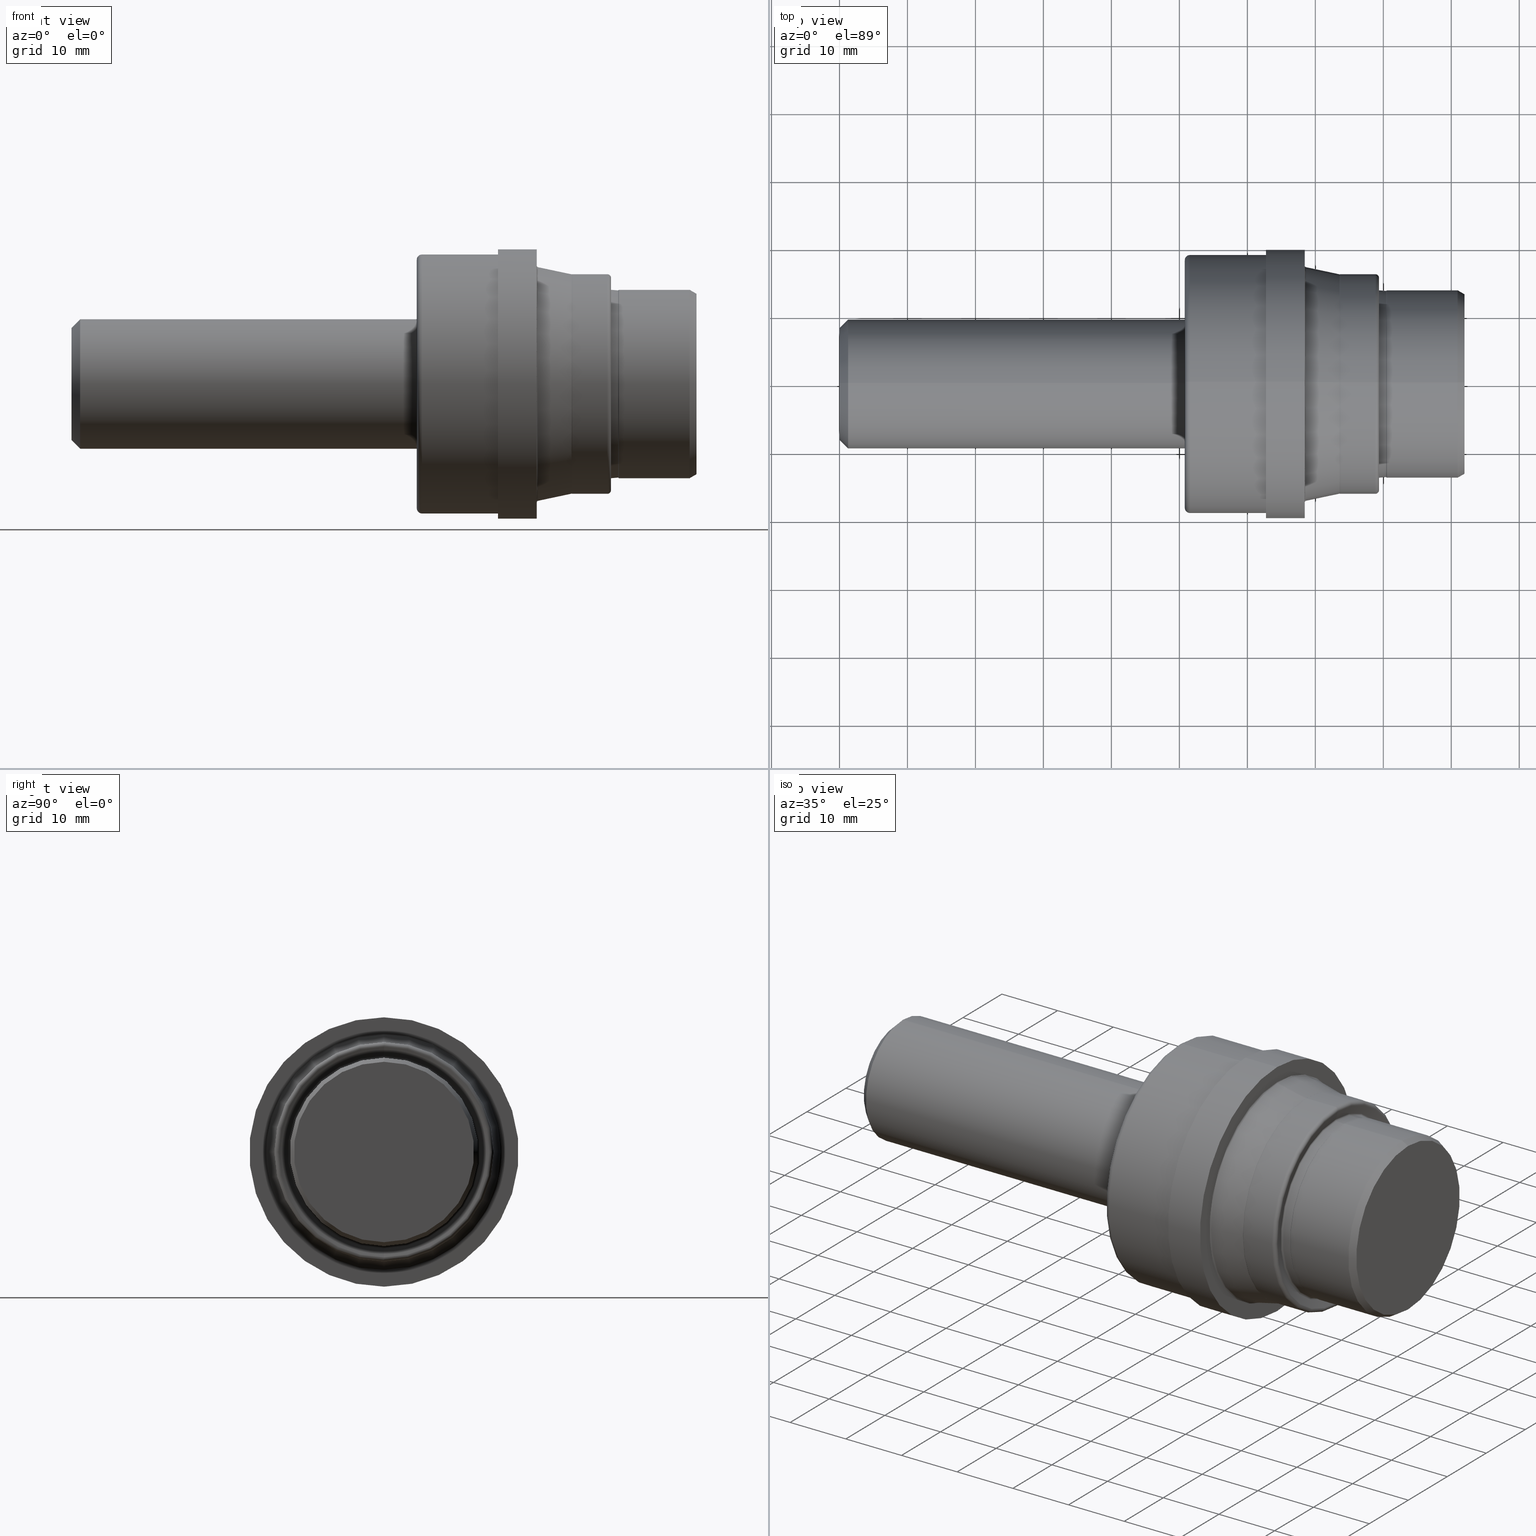
[diagram: canonical four-view strip — front | top / right | iso, engineering-drawing reading convention]
A machine part, canonical four-view strip (front | top / right | iso — engineering-drawing reading convention). The complete STEP part file that produces these views, byte-faithful:
ISO-10303-21;
HEADER;
FILE_DESCRIPTION (( 'STEP AP214' ),
    '1' );
FILE_NAME ('MS33514-20.STEP',
    '2019-03-07T21:07:23',
    ( '' ),
    ( '' ),
    'SwSTEP 2.0',
    'SolidWorks 2018',
    '' );
FILE_SCHEMA (( 'AUTOMOTIVE_DESIGN' ));
ENDSEC;

DATA;
#1 = DIRECTION ( 'NONE',  ( -0.0000000000000000000, -1.000000000000000000, -0.0000000000000000000 ) ) ;
#2 = LENGTH_MEASURE_WITH_UNIT ( LENGTH_MEASURE( 0.02539999999999999897 ), #1012 );
#3 = ORIENTED_EDGE ( 'NONE', *, *, #726, .T. ) ;
#4 = CARTESIAN_POINT ( 'NONE',  ( 2.000000000000000444, 0.0000000000000000000, 0.0000000000000000000 ) ) ;
#5 = VECTOR ( 'NONE', #1031, 39.37007874015748854 ) ;
#6 = FACE_OUTER_BOUND ( 'NONE', #546, .T. ) ;
#7 = EDGE_CURVE ( 'NONE', #959, #431, #322, .T. ) ;
#8 = ORIENTED_EDGE ( 'NONE', *, *, #569, .T. ) ;
#9 = CLOSED_SHELL ( 'NONE', ( #517, #881, #846, #761, #227, #50, #536, #618, #929, #147, #519, #802, #207, #453, #297, #358, #931, #122, #705, #1018, #387, #1038, #287, #844, #950, #78, #375, #685, #469, #66, #437, #593, #604, #433, #866, #212, #164, #779, #124 ) ) ;
#10 = DIRECTION ( 'NONE',  ( 0.0000000000000000000, 0.0000000000000000000, 1.000000000000000000 ) ) ;
#11 = CARTESIAN_POINT ( 'NONE',  ( 3.170340741737109003, 0.0000000000000000000, -0.5454999999999999849 ) ) ;
#12 = EDGE_CURVE ( 'NONE', #695, #43, #602, .T. ) ;
#13 = DIRECTION ( 'NONE',  ( 1.000000000000000000, -0.0000000000000000000, -0.0000000000000000000 ) ) ;
#14 = AXIS2_PLACEMENT_3D ( 'NONE', #566, #325, #172 ) ;
#15 = TOROIDAL_SURFACE ( 'NONE', #215, 0.6411813768762686383, 0.005999999999997721566 ) ;
#16 = ORIENTED_EDGE ( 'NONE', *, *, #673, .T. ) ;
#17 = EDGE_LOOP ( 'NONE', ( #710, #175 ) ) ;
#18 = DIRECTION ( 'NONE',  ( 1.000000000000000000, -0.0000000000000000000, -0.0000000000000000000 ) ) ;
#19 =( GEOMETRIC_REPRESENTATION_CONTEXT ( 3 ) GLOBAL_UNCERTAINTY_ASSIGNED_CONTEXT ( ( #102 ) ) GLOBAL_UNIT_ASSIGNED_CONTEXT ( ( #295, #945, #714 ) ) REPRESENTATION_CONTEXT ( 'NONE', 'WORKASPACE' ) );
#20 = TOROIDAL_SURFACE ( 'NONE', #848, 0.6148500000000004517, 0.02100000000000000477 ) ;
#21 = CARTESIAN_POINT ( 'NONE',  ( 0.0000000000000000000, 0.0000000000000000000, 0.0000000000000000000 ) ) ;
#22 = EDGE_CURVE ( 'NONE', #655, #174, #833, .T. ) ;
#23 = CARTESIAN_POINT ( 'NONE',  ( 2.695000000000000284, 0.0000000000000000000, 0.0000000000000000000 ) ) ;
#24 = AXIS2_PLACEMENT_3D ( 'NONE', #466, #962, #381 ) ;
#25 = ORIENTED_EDGE ( 'NONE', *, *, #511, .T. ) ;
#26 = CIRCLE ( 'NONE', #1040, 0.02999999999999995379 ) ;
#27 = CONICAL_SURFACE ( 'NONE', #343, 0.5454999999999999849, 0.7853981633974578269 ) ;
#28 = AXIS2_PLACEMENT_3D ( 'NONE', #681, #752, #276 ) ;
#29 = EDGE_CURVE ( 'NONE', #385, #858, #823, .T. ) ;
#30 = ORIENTED_EDGE ( 'NONE', *, *, #664, .T. ) ;
#31 = CARTESIAN_POINT ( 'NONE',  ( 2.895828938860935953, 7.780334088944212976E-17, -0.6353124912718658424 ) ) ;
#32 = DIRECTION ( 'NONE',  ( 1.000000000000000000, -0.0000000000000000000, -0.0000000000000000000 ) ) ;
#33 = AXIS2_PLACEMENT_3D ( 'NONE', #272, #748, #198 ) ;
#34 = DIRECTION ( 'NONE',  ( 0.7071067811865459074, 8.659560562354952580E-17, 0.7071067811865491270 ) ) ;
#35 = EDGE_CURVE ( 'NONE', #1005, #431, #216, .T. ) ;
#36 = CARTESIAN_POINT ( 'NONE',  ( 3.620000000000000107, 0.0000000000000000000, 0.5224059892324148802 ) ) ;
#37 = AXIS2_PLACEMENT_3D ( 'NONE', #67, #861, #626 ) ;
#38 = CIRCLE ( 'NONE', #756, 0.3748500000000000165 ) ;
#39 = CARTESIAN_POINT ( 'NONE',  ( 0.0000000000000000000, 0.0000000000000000000, 0.0000000000000000000 ) ) ;
#40 = ORIENTED_EDGE ( 'NONE', *, *, #152, .T. ) ;
#41 = ORIENTED_EDGE ( 'NONE', *, *, #400, .F. ) ;
#42 = UNCERTAINTY_MEASURE_WITH_UNIT (LENGTH_MEASURE( 1.000000000000000082E-05 ), #282, 'distance_accuracy_value', 'NONE');
#43 = VERTEX_POINT ( 'NONE', #938 ) ;
#44 = ORIENTED_EDGE ( 'NONE', *, *, #339, .T. ) ;
#45 = PRODUCT_DEFINITION_SHAPE ( 'NONE', 'NONE',  #240 ) ;
#46 = DIRECTION ( 'NONE',  ( 0.0000000000000000000, 0.0000000000000000000, -1.000000000000000000 ) ) ;
#47 = DIRECTION ( 'NONE',  ( 0.0000000000000000000, 0.0000000000000000000, -1.000000000000000000 ) ) ;
#48 = AXIS2_PLACEMENT_3D ( 'NONE', #226, #699, #142 ) ;
#49 = DIRECTION ( 'NONE',  ( 0.0000000000000000000, 0.0000000000000000000, -1.000000000000000000 ) ) ;
#50 = ADVANCED_FACE ( 'NONE', ( #976 ), #787, .T. ) ;
#51 = CARTESIAN_POINT ( 'NONE',  ( 3.170340741737109003, 0.0000000000000000000, 0.0000000000000000000 ) ) ;
#52 = ORIENTED_EDGE ( 'NONE', *, *, #426, .T. ) ;
#53 = CONICAL_SURFACE ( 'NONE', #975, 0.3748500000000000165, 0.7853981633974506105 ) ;
#54 = SURFACE_SIDE_STYLE ('',( #999 ) ) ;
#55 = CIRCLE ( 'NONE', #402, 0.5224059892324148802 ) ;
#56 = DIRECTION ( 'NONE',  ( 1.000000000000000000, -0.0000000000000000000, -0.0000000000000000000 ) ) ;
#57 = ORIENTED_EDGE ( 'NONE', *, *, #668, .T. ) ;
#58 = ORIENTED_EDGE ( 'NONE', *, *, #403, .F. ) ;
#59 = LINE ( 'NONE', #545, #321 ) ;
#60 = DIRECTION ( 'NONE',  ( 1.000000000000000000, -0.0000000000000000000, -0.0000000000000000000 ) ) ;
#61 = EDGE_CURVE ( 'NONE', #43, #307, #105, .T. ) ;
#62 = DIRECTION ( 'NONE',  ( 0.0000000000000000000, 0.0000000000000000000, -1.000000000000000000 ) ) ;
#63 = CARTESIAN_POINT ( 'NONE',  ( 0.0000000000000000000, 0.0000000000000000000, 0.0000000000000000000 ) ) ;
#64 = DIRECTION ( 'NONE',  ( 1.000000000000000000, -0.0000000000000000000, -0.0000000000000000000 ) ) ;
#65 = DIRECTION ( 'NONE',  ( 0.0000000000000000000, 0.0000000000000000000, -1.000000000000000000 ) ) ;
#66 = ADVANCED_FACE ( 'NONE', ( #638 ), #847, .F. ) ;
#67 = CARTESIAN_POINT ( 'NONE',  ( 2.897076409005843178, 7.852207208644152033E-17, 0.6411813768762686383 ) ) ;
#68 = EDGE_CURVE ( 'NONE', #911, #337, #766, .T. ) ;
#69 = DIRECTION ( 'NONE',  ( 1.000000000000000000, -0.0000000000000000000, -0.0000000000000000000 ) ) ;
#70 = CARTESIAN_POINT ( 'NONE',  ( 2.695000000000000284, 0.0000000000000000000, 0.0000000000000000000 ) ) ;
#71 = FACE_OUTER_BOUND ( 'NONE', #641, .T. ) ;
#72 = ORIENTED_EDGE ( 'NONE', *, *, #825, .T. ) ;
#73 = AXIS2_PLACEMENT_3D ( 'NONE', #648, #481, #10 ) ;
#74 = CARTESIAN_POINT ( 'NONE',  ( 0.04999999999999998890, 0.0000000000000000000, -0.3748500000000000165 ) ) ;
#75 = ORIENTED_EDGE ( 'NONE', *, *, #138, .T. ) ;
#76 = ORIENTED_EDGE ( 'NONE', *, *, #451, .F. ) ;
#77 = DIRECTION ( 'NONE',  ( 0.0000000000000000000, 1.224646799147349756E-16, 1.000000000000000000 ) ) ;
#78 = ADVANCED_FACE ( 'NONE', ( #239 ), #20, .T. ) ;
#79 = EDGE_CURVE ( 'NONE', #898, #432, #619, .T. ) ;
#80 = ORIENTED_EDGE ( 'NONE', *, *, #664, .F. ) ;
#81 = TOROIDAL_SURFACE ( 'NONE', #870, 0.7199999999999999734, 0.02999999999999988440 ) ;
#82 = CIRCLE ( 'NONE', #454, 0.3748500000000000165 ) ;
#83 = AXIS2_PLACEMENT_3D ( 'NONE', #914, #354, #691 ) ;
#84 = EDGE_CURVE ( 'NONE', #926, #301, #59, .T. ) ;
#85 = AXIS2_PLACEMENT_3D ( 'NONE', #666, #107, #274 ) ;
#86 = EDGE_LOOP ( 'NONE', ( #188, #542, #3, #728 ) ) ;
#87 = EDGE_CURVE ( 'NONE', #995, #288, #131, .T. ) ;
#88 = CIRCLE ( 'NONE', #332, 0.5586501374319425839 ) ;
#89 = ORIENTED_EDGE ( 'NONE', *, *, #330, .F. ) ;
#90 = EDGE_LOOP ( 'NONE', ( #91, #742, #652, #689 ) ) ;
#91 = ORIENTED_EDGE ( 'NONE', *, *, #178, .F. ) ;
#92 = DIRECTION ( 'NONE',  ( 1.000000000000000000, -0.0000000000000000000, -0.0000000000000000000 ) ) ;
#93 = AXIS2_PLACEMENT_3D ( 'NONE', #707, #612, #137 ) ;
#94 = VERTEX_POINT ( 'NONE', #345 ) ;
#95 = DIRECTION ( 'NONE',  ( 0.0000000000000000000, 0.0000000000000000000, -1.000000000000000000 ) ) ;
#96 = DIRECTION ( 'NONE',  ( 0.0000000000000000000, 0.0000000000000000000, -1.000000000000000000 ) ) ;
#97 = AXIS2_PLACEMENT_3D ( 'NONE', #513, #286, #516 ) ;
#98 = FACE_OUTER_BOUND ( 'NONE', #415, .T. ) ;
#99 = EDGE_CURVE ( 'NONE', #431, #1005, #891, .T. ) ;
#100 = DIRECTION ( 'NONE',  ( 0.0000000000000000000, 0.0000000000000000000, -1.000000000000000000 ) ) ;
#101 = VECTOR ( 'NONE', #338, 39.37007874015748143 ) ;
#102 = UNCERTAINTY_MEASURE_WITH_UNIT (LENGTH_MEASURE( 1.000000000000000082E-05 ), #295, 'distance_accuracy_value', 'NONE');
#103 = CARTESIAN_POINT ( 'NONE',  ( 2.701336706473457472, 8.286610425892697177E-17, -0.6766530914596893265 ) ) ;
#104 = CARTESIAN_POINT ( 'NONE',  ( 3.120000000000000107, 6.809794834978257396E-17, 0.5560619469809173765 ) ) ;
#105 = CIRCLE ( 'NONE', #1019, 0.7500000000000001110 ) ;
#106 = ORIENTED_EDGE ( 'NONE', *, *, #330, .T. ) ;
#107 = DIRECTION ( 'NONE',  ( -1.000000000000000000, 0.0000000000000000000, 0.0000000000000000000 ) ) ;
#108 = DIRECTION ( 'NONE',  ( 0.0000000000000000000, 0.0000000000000000000, 1.000000000000000000 ) ) ;
#109 = FACE_OUTER_BOUND ( 'NONE', #558, .T. ) ;
#110 = EDGE_LOOP ( 'NONE', ( #859, #40, #853, #563 ) ) ;
#111 = DIRECTION ( 'NONE',  ( 0.0000000000000000000, 0.0000000000000000000, -1.000000000000000000 ) ) ;
#112 = ORIENTED_EDGE ( 'NONE', *, *, #68, .F. ) ;
#113 = DIRECTION ( 'NONE',  ( 1.000000000000000000, -0.0000000000000000000, -0.0000000000000000000 ) ) ;
#114 = EDGE_CURVE ( 'NONE', #911, #432, #974, .T. ) ;
#115 = ORIENTED_EDGE ( 'NONE', *, *, #621, .F. ) ;
#116 = ORIENTED_EDGE ( 'NONE', *, *, #780, .F. ) ;
#117 = ORIENTED_EDGE ( 'NONE', *, *, #548, .T. ) ;
#118 = DIRECTION ( 'NONE',  ( 0.0000000000000000000, 0.0000000000000000000, -1.000000000000000000 ) ) ;
#119 = AXIS2_PLACEMENT_3D ( 'NONE', #4, #479, #977 ) ;
#120 = DIRECTION ( 'NONE',  ( 1.000000000000000000, -0.0000000000000000000, -0.0000000000000000000 ) ) ;
#121 = CARTESIAN_POINT ( 'NONE',  ( 3.103658649738347819, 0.0000000000000000000, 0.0000000000000000000 ) ) ;
#122 = ADVANCED_FACE ( 'NONE', ( #832 ), #989, .T. ) ;
#123 = FILL_AREA_STYLE_COLOUR ( '', #340 ) ;
#124 = ADVANCED_FACE ( 'NONE', ( #803 ), #1034, .T. ) ;
#125 = CARTESIAN_POINT ( 'NONE',  ( 2.029999999999999805, 0.0000000000000000000, 0.0000000000000000000 ) ) ;
#126 = CONICAL_SURFACE ( 'NONE', #471, 0.3748500000000000165, 0.7853981633974506105 ) ;
#127 = FACE_OUTER_BOUND ( 'NONE', #556, .T. ) ;
#128 = VERTEX_POINT ( 'NONE', #951 ) ;
#129 = ORIENTED_EDGE ( 'NONE', *, *, #894, .T. ) ;
#130 = CARTESIAN_POINT ( 'NONE',  ( 2.895828938860935953, 0.0000000000000000000, 0.0000000000000000000 ) ) ;
#131 = LINE ( 'NONE', #140, #741 ) ;
#132 = DIRECTION ( 'NONE',  ( 0.0000000000000000000, 0.0000000000000000000, -1.000000000000000000 ) ) ;
#133 = ORIENTED_EDGE ( 'NONE', *, *, #194, .T. ) ;
#134 =( LENGTH_UNIT ( ) NAMED_UNIT ( * ) SI_UNIT ( $, .METRE. ) );
#135 = DIRECTION ( 'NONE',  ( 0.0000000000000000000, 0.0000000000000000000, -1.000000000000000000 ) ) ;
#136 = ORIENTED_EDGE ( 'NONE', *, *, #890, .T. ) ;
#137 = DIRECTION ( 'NONE',  ( 0.0000000000000000000, 0.0000000000000000000, 1.000000000000000000 ) ) ;
#138 = EDGE_CURVE ( 'NONE', #432, #898, #401, .T. ) ;
#139 = DIRECTION ( 'NONE',  ( 1.000000000000000000, -0.0000000000000000000, -0.0000000000000000000 ) ) ;
#140 = CARTESIAN_POINT ( 'NONE',  ( 3.110340741737108949, 0.0000000000000000000, -0.5586501374319425839 ) ) ;
#141 = ORIENTED_EDGE ( 'NONE', *, *, #726, .F. ) ;
#142 = DIRECTION ( 'NONE',  ( 0.0000000000000000000, 0.0000000000000000000, -1.000000000000000000 ) ) ;
#143 = CIRCLE ( 'NONE', #406, 0.6351813768762709644 ) ;
#144 = AXIS2_PLACEMENT_3D ( 'NONE', #1002, #744, #830 ) ;
#145 = CARTESIAN_POINT ( 'NONE',  ( 3.620000000000000107, 6.539038257518823720E-17, -0.5224059892324148802 ) ) ;
#146 = CIRCLE ( 'NONE', #281, 0.5454999999999999849 ) ;
#147 = ADVANCED_FACE ( 'NONE', ( #436 ), #706, .F. ) ;
#148 = DIRECTION ( 'NONE',  ( 0.0000000000000000000, 0.0000000000000000000, -1.000000000000000000 ) ) ;
#149 = VERTEX_POINT ( 'NONE', #205 ) ;
#150 = DIRECTION ( 'NONE',  ( 0.0000000000000000000, 0.0000000000000000000, -1.000000000000000000 ) ) ;
#151 = ORIENTED_EDGE ( 'NONE', *, *, #457, .T. ) ;
#152 = EDGE_CURVE ( 'NONE', #782, #985, #483, .T. ) ;
#153 = ORIENTED_EDGE ( 'NONE', *, *, #935, .T. ) ;
#154 = ORIENTED_EDGE ( 'NONE', *, *, #792, .F. ) ;
#155 = ORIENTED_EDGE ( 'NONE', *, *, #983, .F. ) ;
#156 = CARTESIAN_POINT ( 'NONE',  ( 3.166772432714541896, 6.658598698234532847E-17, 0.5419316909774325453 ) ) ;
#157 = DIRECTION ( 'NONE',  ( 1.000000000000000000, -0.0000000000000000000, -0.0000000000000000000 ) ) ;
#158 = DIRECTION ( 'NONE',  ( 1.000000000000000000, -0.0000000000000000000, -0.0000000000000000000 ) ) ;
#159 = AXIS2_PLACEMENT_3D ( 'NONE', #458, #1041, #547 ) ;
#160 = DIRECTION ( 'NONE',  ( 0.0000000000000000000, 0.0000000000000000000, -1.000000000000000000 ) ) ;
#161 = DIRECTION ( 'NONE',  ( 0.0000000000000000000, 0.0000000000000000000, -1.000000000000000000 ) ) ;
#162 = CYLINDRICAL_SURFACE ( 'NONE', #576, 0.3748500000000000165 ) ;
#163 = CONICAL_SURFACE ( 'NONE', #83, 0.5586501374319425839, 1.308996938995747872 ) ;
#164 = ADVANCED_FACE ( 'NONE', ( #310 ), #633, .T. ) ;
#165 = DIRECTION ( 'NONE',  ( 1.000000000000000000, -0.0000000000000000000, -0.0000000000000000000 ) ) ;
#166 = EDGE_CURVE ( 'NONE', #985, #816, #842, .T. ) ;
#167 = ORIENTED_EDGE ( 'NONE', *, *, #835, .F. ) ;
#168 = COLOUR_RGB ( '',0.7529411764705882248, 0.7529411764705882248, 0.7529411764705882248 ) ;
#169 = ORIENTED_EDGE ( 'NONE', *, *, #488, .T. ) ;
#170 = VECTOR ( 'NONE', #954, 39.37007874015748143 ) ;
#171 = CIRCLE ( 'NONE', #1010, 0.6094148000528477604 ) ;
#172 = DIRECTION ( 'NONE',  ( 0.0000000000000000000, 0.0000000000000000000, -1.000000000000000000 ) ) ;
#173 = ORIENTED_EDGE ( 'NONE', *, *, #264, .T. ) ;
#174 = VERTEX_POINT ( 'NONE', #934 ) ;
#175 = ORIENTED_EDGE ( 'NONE', *, *, #900, .F. ) ;
#176 = ORIENTED_EDGE ( 'NONE', *, *, #733, .T. ) ;
#177 = DIRECTION ( 'NONE',  ( -0.0000000000000000000, 0.0000000000000000000, -1.000000000000000000 ) ) ;
#178 = EDGE_CURVE ( 'NONE', #487, #655, #1044, .T. ) ;
#179 = DIRECTION ( 'NONE',  ( 0.0000000000000000000, 0.0000000000000000000, -1.000000000000000000 ) ) ;
#180 = AXIS2_PLACEMENT_3D ( 'NONE', #807, #245, #722 ) ;
#181 = EDGE_CURVE ( 'NONE', #659, #489, #208, .T. ) ;
#182 = CARTESIAN_POINT ( 'NONE',  ( 2.899828938860929739, 0.0000000000000000000, 0.0000000000000000000 ) ) ;
#183 = CIRCLE ( 'NONE', #359, 0.6766530914596893265 ) ;
#184 = FACE_OUTER_BOUND ( 'NONE', #635, .T. ) ;
#185 = CARTESIAN_POINT ( 'NONE',  ( 0.0000000000000000000, 0.0000000000000000000, 0.0000000000000000000 ) ) ;
#186 = VERTEX_POINT ( 'NONE', #422 ) ;
#187 = AXIS2_PLACEMENT_3D ( 'NONE', #243, #970, #720 ) ;
#188 = ORIENTED_EDGE ( 'NONE', *, *, #767, .F. ) ;
#189 = DIRECTION ( 'NONE',  ( 0.0000000000000000000, 0.0000000000000000000, -1.000000000000000000 ) ) ;
#190 = VERTEX_POINT ( 'NONE', #623 ) ;
#191 = VECTOR ( 'NONE', #446, 39.37007874015748143 ) ;
#192 = CARTESIAN_POINT ( 'NONE',  ( 2.470000000000000195, 0.0000000000000000000, -0.7500000000000001110 ) ) ;
#193 = CYLINDRICAL_SURFACE ( 'NONE', #896, 0.7499999999999998890 ) ;
#194 = EDGE_CURVE ( 'NONE', #888, #445, #384, .T. ) ;
#195 = EDGE_LOOP ( 'NONE', ( #731, #155 ) ) ;
#196 = EDGE_LOOP ( 'NONE', ( #529, #129, #610, #713 ) ) ;
#197 = ORIENTED_EDGE ( 'NONE', *, *, #347, .T. ) ;
#198 = DIRECTION ( 'NONE',  ( 0.0000000000000000000, 0.0000000000000000000, -1.000000000000000000 ) ) ;
#199 = AXIS2_PLACEMENT_3D ( 'NONE', #824, #270, #743 ) ;
#200 = DIRECTION ( 'NONE',  ( -1.000000000000000000, 0.0000000000000000000, 0.0000000000000000000 ) ) ;
#201 = CARTESIAN_POINT ( 'NONE',  ( 3.119128442572523419, 0.0000000000000000000, 0.0000000000000000000 ) ) ;
#202 = DIRECTION ( 'NONE',  ( 0.0000000000000000000, 0.0000000000000000000, -1.000000000000000000 ) ) ;
#203 = AXIS2_PLACEMENT_3D ( 'NONE', #535, #367, #700 ) ;
#204 = CARTESIAN_POINT ( 'NONE',  ( 2.695000000000000284, 9.552245033349354819E-17, 0.7800000000000000266 ) ) ;
#205 = CARTESIAN_POINT ( 'NONE',  ( 2.897076409005843178, 0.0000000000000000000, -0.6351813768762709644 ) ) ;
#206 = CIRCLE ( 'NONE', #97, 0.5460999999999996968 ) ;
#207 = ADVANCED_FACE ( 'NONE', ( #408 ), #163, .F. ) ;
#208 = CIRCLE ( 'NONE', #296, 0.7199999999999999734 ) ;
#209 = CARTESIAN_POINT ( 'NONE',  ( 2.029999999999999805, 0.0000000000000000000, 0.0000000000000000000 ) ) ;
#210 = ORIENTED_EDGE ( 'NONE', *, *, #723, .T. ) ;
#211 = ORIENTED_EDGE ( 'NONE', *, *, #956, .F. ) ;
#212 = ADVANCED_FACE ( 'NONE', ( #575, #184 ), #460, .T. ) ;
#213 = FILL_AREA_STYLE_COLOUR ( '', #168 ) ;
#214 = CARTESIAN_POINT ( 'NONE',  ( 2.897076409005843178, 0.0000000000000000000, -0.6411813768762686383 ) ) ;
#215 = AXIS2_PLACEMENT_3D ( 'NONE', #600, #64, #47 ) ;
#216 = CIRCLE ( 'NONE', #969, 0.5454999999999999849 ) ;
#217 =( NAMED_UNIT ( * ) PLANE_ANGLE_UNIT ( ) SI_UNIT ( $, .RADIAN. ) );
#218 = DIRECTION ( 'NONE',  ( 0.0000000000000000000, 0.0000000000000000000, -1.000000000000000000 ) ) ;
#219 = CARTESIAN_POINT ( 'NONE',  ( 2.470000000000000195, 0.0000000000000000000, 0.0000000000000000000 ) ) ;
#220 = CARTESIAN_POINT ( 'NONE',  ( 2.470000000000000195, 0.0000000000000000000, 0.0000000000000000000 ) ) ;
#221 = ORIENTED_EDGE ( 'NONE', *, *, #505, .T. ) ;
#222 = CIRCLE ( 'NONE', #312, 0.7800000000000000266 ) ;
#223 = CIRCLE ( 'NONE', #788, 0.6353124912718658424 ) ;
#224 = ORIENTED_EDGE ( 'NONE', *, *, #1036, .T. ) ;
#225 = DIRECTION ( 'NONE',  ( 1.000000000000000000, -0.0000000000000000000, -0.0000000000000000000 ) ) ;
#226 = CARTESIAN_POINT ( 'NONE',  ( 2.897076409005843178, 0.0000000000000000000, 0.0000000000000000000 ) ) ;
#227 = ADVANCED_FACE ( 'NONE', ( #798 ), #597, .T. ) ;
#228 = DIRECTION ( 'NONE',  ( 0.0000000000000000000, 0.0000000000000000000, -1.000000000000000000 ) ) ;
#229 = CARTESIAN_POINT ( 'NONE',  ( 2.899828938860929739, 0.0000000000000000000, -0.6358499999999984720 ) ) ;
#230 = DIRECTION ( 'NONE',  ( 1.000000000000000000, -0.0000000000000000000, -0.0000000000000000000 ) ) ;
#231 = EDGE_CURVE ( 'NONE', #985, #94, #355, .T. ) ;
#232 = DIRECTION ( 'NONE',  ( 1.000000000000000000, -0.0000000000000000000, -0.0000000000000000000 ) ) ;
#233 = AXIS2_PLACEMENT_3D ( 'NONE', #557, #1, #474 ) ;
#234 = PRODUCT_CONTEXT ( 'NONE', #1022, 'mechanical' ) ;
#235 = VECTOR ( 'NONE', #1027, 39.37007874015748143 ) ;
#236 = ORIENTED_EDGE ( 'NONE', *, *, #918, .F. ) ;
#237 = DIRECTION ( 'NONE',  ( 0.0000000000000000000, 0.0000000000000000000, -1.000000000000000000 ) ) ;
#238 = EDGE_LOOP ( 'NONE', ( #588, #224, #583, #899 ) ) ;
#239 = FACE_OUTER_BOUND ( 'NONE', #730, .T. ) ;
#240 = PRODUCT_DEFINITION ( 'UNKNOWN', '', #285, #492 ) ;
#241 = DIRECTION ( 'NONE',  ( 0.0000000000000000000, 0.0000000000000000000, -1.000000000000000000 ) ) ;
#242 = AXIS2_PLACEMENT_3D ( 'NONE', #63, #531, #928 ) ;
#243 = CARTESIAN_POINT ( 'NONE',  ( 0.0000000000000000000, 0.0000000000000000000, 0.0000000000000000000 ) ) ;
#244 = ORIENTED_EDGE ( 'NONE', *, *, #61, .T. ) ;
#245 = DIRECTION ( 'NONE',  ( 1.000000000000000000, -0.0000000000000000000, -0.0000000000000000000 ) ) ;
#246 = CIRCLE ( 'NONE', #988, 0.3248499999999998056 ) ;
#247 = FACE_OUTER_BOUND ( 'NONE', #490, .T. ) ;
#248 = EDGE_LOOP ( 'NONE', ( #750, #329, #952, #665 ) ) ;
#249 = ORIENTED_EDGE ( 'NONE', *, *, #1009, .F. ) ;
#250 = CARTESIAN_POINT ( 'NONE',  ( 2.895828938860935953, 7.780334088944226534E-17, 0.6353124912718670636 ) ) ;
#251 = EDGE_CURVE ( 'NONE', #294, #888, #1013, .T. ) ;
#252 = DIRECTION ( 'NONE',  ( 1.000000000000000000, -0.0000000000000000000, -0.0000000000000000000 ) ) ;
#253 = AXIS2_PLACEMENT_3D ( 'NONE', #23, #498, #414 ) ;
#254 = EDGE_CURVE ( 'NONE', #808, #149, #760, .T. ) ;
#255 = PLANE ( 'NONE',  #960 ) ;
#256 = CYLINDRICAL_SURFACE ( 'NONE', #878, 0.7800000000000000266 ) ;
#257 = CARTESIAN_POINT ( 'NONE',  ( 3.620000000000000107, 0.0000000000000000000, 0.0000000000000000000 ) ) ;
#258 = AXIS2_PLACEMENT_3D ( 'NONE', #697, #771, #694 ) ;
#259 = EDGE_LOOP ( 'NONE', ( #210, #495, #280, #739 ) ) ;
#260 = EDGE_LOOP ( 'NONE', ( #1047, #646, #151, #386 ) ) ;
#261 = ORIENTED_EDGE ( 'NONE', *, *, #114, .T. ) ;
#262 = CARTESIAN_POINT ( 'NONE',  ( 2.695000000000000284, 8.382441252159281765E-17, 0.6844782722655596841 ) ) ;
#263 = AXIS2_PLACEMENT_3D ( 'NONE', #614, #139, #363 ) ;
#264 = EDGE_CURVE ( 'NONE', #858, #190, #993, .T. ) ;
#265 = CARTESIAN_POINT ( 'NONE',  ( 3.166772432714541896, 0.0000000000000000000, 0.0000000000000000000 ) ) ;
#266 = EDGE_LOOP ( 'NONE', ( #820, #651, #136, #843 ) ) ;
#267 = FACE_OUTER_BOUND ( 'NONE', #1029, .T. ) ;
#268 = VECTOR ( 'NONE', #908, 39.37007874015748143 ) ;
#269 = ORIENTED_EDGE ( 'NONE', *, *, #251, .F. ) ;
#270 = DIRECTION ( 'NONE',  ( 1.000000000000000000, -0.0000000000000000000, -0.0000000000000000000 ) ) ;
#271 = ORIENTED_EDGE ( 'NONE', *, *, #440, .F. ) ;
#272 = CARTESIAN_POINT ( 'NONE',  ( 2.695000000000000284, 0.0000000000000000000, 0.0000000000000000000 ) ) ;
#273 = CARTESIAN_POINT ( 'NONE',  ( 2.703000000000000291, 8.382441252159281765E-17, 0.6844782722655596841 ) ) ;
#274 = DIRECTION ( 'NONE',  ( 0.0000000000000000000, 0.0000000000000000000, 1.000000000000000000 ) ) ;
#275 = VECTOR ( 'NONE', #877, 39.37007874015748143 ) ;
#276 = DIRECTION ( 'NONE',  ( 0.0000000000000000000, 0.0000000000000000000, -1.000000000000000000 ) ) ;
#277 = EDGE_CURVE ( 'NONE', #186, #1005, #335, .T. ) ;
#278 = EDGE_LOOP ( 'NONE', ( #499, #342, #154, #831 ) ) ;
#279 = ORIENTED_EDGE ( 'NONE', *, *, #835, .T. ) ;
#280 = ORIENTED_EDGE ( 'NONE', *, *, #306, .F. ) ;
#281 = AXIS2_PLACEMENT_3D ( 'NONE', #884, #320, #804 ) ;
#282 =( CONVERSION_BASED_UNIT ( 'INCH', #686 ) LENGTH_UNIT ( ) NAMED_UNIT ( #763 ) );
#283 = CARTESIAN_POINT ( 'NONE',  ( 0.0000000000000000000, 0.0000000000000000000, 0.0000000000000000000 ) ) ;
#284 = CARTESIAN_POINT ( 'NONE',  ( 3.580000000000000071, 0.0000000000000000000, 0.0000000000000000000 ) ) ;
#285 = PRODUCT_DEFINITION_FORMATION_WITH_SPECIFIED_SOURCE ( 'ANY', '', #873, .NOT_KNOWN. ) ;
#286 = DIRECTION ( 'NONE',  ( 1.000000000000000000, -0.0000000000000000000, -0.0000000000000000000 ) ) ;
#287 = ADVANCED_FACE ( 'NONE', ( #554 ), #719, .T. ) ;
#288 = VERTEX_POINT ( 'NONE', #503 ) ;
#289 = CIRCLE ( 'NONE', #24, 0.5419316909774325453 ) ;
#290 = VECTOR ( 'NONE', #502, 39.37007874015748854 ) ;
#291 = EDGE_CURVE ( 'NONE', #785, #925, #939, .T. ) ;
#292 = CARTESIAN_POINT ( 'NONE',  ( 0.04999999999999998890, 0.0000000000000000000, 0.0000000000000000000 ) ) ;
#293 = DIRECTION ( 'NONE',  ( 1.000000000000000000, -0.0000000000000000000, -0.0000000000000000000 ) ) ;
#294 = VERTEX_POINT ( 'NONE', #912 ) ;
#295 =( CONVERSION_BASED_UNIT ( 'INCH', #533 ) LENGTH_UNIT ( ) NAMED_UNIT ( #607 ) );
#296 = AXIS2_PLACEMENT_3D ( 'NONE', #606, #293, #132 ) ;
#297 = ADVANCED_FACE ( 'NONE', ( #127 ), #909, .T. ) ;
#298 = EDGE_CURVE ( 'NONE', #357, #337, #523, .T. ) ;
#299 = DIRECTION ( 'NONE',  ( -1.000000000000000000, 0.0000000000000000000, 0.0000000000000000000 ) ) ;
#300 = CARTESIAN_POINT ( 'NONE',  ( 0.04999999999999998890, 4.590588526603853748E-17, 0.3748500000000000165 ) ) ;
#301 = VERTEX_POINT ( 'NONE', #581 ) ;
#302 = AXIS2_PLACEMENT_3D ( 'NONE', #265, #738, #189 ) ;
#303 = DIRECTION ( 'NONE',  ( 1.000000000000000000, -0.0000000000000000000, -0.0000000000000000000 ) ) ;
#304 = CARTESIAN_POINT ( 'NONE',  ( 2.703000000000000291, 0.0000000000000000000, 0.0000000000000000000 ) ) ;
#305 = CIRCLE ( 'NONE', #550, 0.7499999999999998890 ) ;
#306 = EDGE_CURVE ( 'NONE', #288, #94, #737, .T. ) ;
#307 = VERTEX_POINT ( 'NONE', #192 ) ;
#308 = DIRECTION ( 'NONE',  ( -1.000000000000000000, 0.0000000000000000000, 0.0000000000000000000 ) ) ;
#309 = DIRECTION ( 'NONE',  ( -0.0000000000000000000, -1.000000000000000000, -0.0000000000000000000 ) ) ;
#310 = FACE_OUTER_BOUND ( 'NONE', #266, .T. ) ;
#311 = CARTESIAN_POINT ( 'NONE',  ( 0.0000000000000000000, 0.0000000000000000000, 0.0000000000000000000 ) ) ;
#312 = AXIS2_PLACEMENT_3D ( 'NONE', #219, #777, #228 ) ;
#313 = DIRECTION ( 'NONE',  ( 1.000000000000000000, -0.0000000000000000000, -0.0000000000000000000 ) ) ;
#314 = CARTESIAN_POINT ( 'NONE',  ( 3.110340741737108949, 0.0000000000000000000, 0.0000000000000000000 ) ) ;
#315 = DIRECTION ( 'NONE',  ( 1.000000000000000000, -0.0000000000000000000, -0.0000000000000000000 ) ) ;
#316 = DIRECTION ( 'NONE',  ( 1.000000000000000000, -0.0000000000000000000, -0.0000000000000000000 ) ) ;
#317 = AXIS2_PLACEMENT_3D ( 'NONE', #532, #452, #862 ) ;
#318 = TOROIDAL_SURFACE ( 'NONE', #1023, 0.5560619469809173765, 0.01000000000000024307 ) ;
#319 = CIRCLE ( 'NONE', #302, 0.5419316909774325453 ) ;
#320 = DIRECTION ( 'NONE',  ( 1.000000000000000000, -0.0000000000000000000, -0.0000000000000000000 ) ) ;
#321 = VECTOR ( 'NONE', #698, 39.37007874015748854 ) ;
#322 = LINE ( 'NONE', #364, #390 ) ;
#323 = DIRECTION ( 'NONE',  ( 0.0000000000000000000, 0.0000000000000000000, -1.000000000000000000 ) ) ;
#324 = VERTEX_POINT ( 'NONE', #417 ) ;
#325 = DIRECTION ( 'NONE',  ( 1.000000000000000000, -0.0000000000000000000, -0.0000000000000000000 ) ) ;
#326 = LINE ( 'NONE', #382, #275 ) ;
#327 = ORIENTED_EDGE ( 'NONE', *, *, #457, .F. ) ;
#328 = EDGE_LOOP ( 'NONE', ( #58, #813, #674, #637 ) ) ;
#329 = ORIENTED_EDGE ( 'NONE', *, *, #178, .T. ) ;
#330 = EDGE_CURVE ( 'NONE', #190, #858, #497, .T. ) ;
#331 = CARTESIAN_POINT ( 'NONE',  ( 0.0000000000000000000, 0.0000000000000000000, 0.0000000000000000000 ) ) ;
#332 = AXIS2_PLACEMENT_3D ( 'NONE', #314, #794, #237 ) ;
#333 = FACE_OUTER_BOUND ( 'NONE', #259, .T. ) ;
#334 = DIRECTION ( 'NONE',  ( 0.0000000000000000000, 0.0000000000000000000, -1.000000000000000000 ) ) ;
#335 = LINE ( 'NONE', #36, #968 ) ;
#336 = PRODUCT_RELATED_PRODUCT_CATEGORY ( 'part', '', ( #873 ) ) ;
#337 = VERTEX_POINT ( 'NONE', #103 ) ;
#338 = DIRECTION ( 'NONE',  ( 0.7071067811865459074, 0.0000000000000000000, -0.7071067811865491270 ) ) ;
#339 = EDGE_CURVE ( 'NONE', #923, #926, #319, .T. ) ;
#340 = COLOUR_RGB ( '',0.7529411764705882248, 0.7529411764705882248, 0.7529411764705882248 ) ;
#341 = CIRCLE ( 'NONE', #233, 0.02999999999999995379 ) ;
#342 = ORIENTED_EDGE ( 'NONE', *, *, #629, .T. ) ;
#343 = AXIS2_PLACEMENT_3D ( 'NONE', #579, #657, #100 ) ;
#344 = ORIENTED_EDGE ( 'NONE', *, *, #339, .F. ) ;
#345 = CARTESIAN_POINT ( 'NONE',  ( 3.123943092090418538, 7.463178842377443928E-17, 0.6094148000528477604 ) ) ;
#346 = ORIENTED_EDGE ( 'NONE', *, *, #562, .F. ) ;
#347 = EDGE_CURVE ( 'NONE', #923, #294, #692, .T. ) ;
#348 = DIRECTION ( 'NONE',  ( 0.0000000000000000000, 1.000000000000000000, -1.224646799147353207E-16 ) ) ;
#349 = AXIS2_PLACEMENT_3D ( 'NONE', #789, #308, #1025 ) ;
#350 = DIRECTION ( 'NONE',  ( 0.0000000000000000000, 0.0000000000000000000, -1.000000000000000000 ) ) ;
#351 = CARTESIAN_POINT ( 'NONE',  ( 2.899828938860929739, 0.0000000000000000000, 0.0000000000000000000 ) ) ;
#352 = DIRECTION ( 'NONE',  ( 1.000000000000000000, -0.0000000000000000000, -0.0000000000000000000 ) ) ;
#353 = CIRCLE ( 'NONE', #525, 0.6353124912718658424 ) ;
#354 = DIRECTION ( 'NONE',  ( 1.000000000000000000, -0.0000000000000000000, -0.0000000000000000000 ) ) ;
#355 = CIRCLE ( 'NONE', #647, 0.02099999999999999437 ) ;
#356 = EDGE_LOOP ( 'NONE', ( #712, #52 ) ) ;
#357 = VERTEX_POINT ( 'NONE', #661 ) ;
#358 = ADVANCED_FACE ( 'NONE', ( #477 ), #27, .T. ) ;
#359 = AXIS2_PLACEMENT_3D ( 'NONE', #530, #947, #448 ) ;
#360 = ORIENTED_EDGE ( 'NONE', *, *, #7, .F. ) ;
#361 = DIMENSIONAL_EXPONENTS ( 1.000000000000000000, 0.0000000000000000000, 0.0000000000000000000, 0.0000000000000000000, 0.0000000000000000000, 0.0000000000000000000, 0.0000000000000000000 ) ;
#362 = CARTESIAN_POINT ( 'NONE',  ( 3.166772432714541896, 0.0000000000000000000, -0.5419316909774325453 ) ) ;
#363 = DIRECTION ( 'NONE',  ( 0.0000000000000000000, 0.0000000000000000000, -1.000000000000000000 ) ) ;
#364 = CARTESIAN_POINT ( 'NONE',  ( 3.620000000000000107, 6.397628225688835079E-17, -0.5224059892324148802 ) ) ;
#365 = ORIENTED_EDGE ( 'NONE', *, *, #194, .F. ) ;
#366 = CONICAL_SURFACE ( 'NONE', #203, 0.5586501374319425839, 1.308996938995747872 ) ;
#367 = DIRECTION ( 'NONE',  ( 1.000000000000000000, -0.0000000000000000000, -0.0000000000000000000 ) ) ;
#368 = TOROIDAL_SURFACE ( 'NONE', #14, 0.5560619469809173765, 0.01000000000000024307 ) ;
#369 = DIRECTION ( 'NONE',  ( 0.0000000000000000000, 1.224646799147354193E-16, 1.000000000000000000 ) ) ;
#370 = ORIENTED_EDGE ( 'NONE', *, *, #825, .F. ) ;
#371 = DIRECTION ( 'NONE',  ( -0.0000000000000000000, -1.000000000000000000, -0.0000000000000000000 ) ) ;
#372 = ORIENTED_EDGE ( 'NONE', *, *, #378, .T. ) ;
#373 = VERTEX_POINT ( 'NONE', #494 ) ;
#374 = ORIENTED_EDGE ( 'NONE', *, *, #838, .T. ) ;
#375 = ADVANCED_FACE ( 'NONE', ( #247 ), #887, .T. ) ;
#376 = DIRECTION ( 'NONE',  ( 1.000000000000000000, -0.0000000000000000000, -0.0000000000000000000 ) ) ;
#377 = CARTESIAN_POINT ( 'NONE',  ( 3.103658649738347819, 7.786916672378449634E-17, 0.6358500000000002483 ) ) ;
#378 = EDGE_CURVE ( 'NONE', #925, #655, #82, .T. ) ;
#379 = DIRECTION ( 'NONE',  ( 0.0000000000000000000, 1.000000000000000000, -1.224646799147353207E-16 ) ) ;
#380 = AXIS2_PLACEMENT_3D ( 'NONE', #640, #973, #241 ) ;
#381 = DIRECTION ( 'NONE',  ( 0.0000000000000000000, 0.0000000000000000000, -1.000000000000000000 ) ) ;
#382 = CARTESIAN_POINT ( 'NONE',  ( 3.110340741737108949, 6.841491026492574855E-17, 0.5586501374319425839 ) ) ;
#383 = CIRCLE ( 'NONE', #413, 0.7500000000000001110 ) ;
#384 = CIRCLE ( 'NONE', #450, 0.01000000000000023440 ) ;
#385 = VERTEX_POINT ( 'NONE', #656 ) ;
#386 = ORIENTED_EDGE ( 'NONE', *, *, #87, .F. ) ;
#387 = ADVANCED_FACE ( 'NONE', ( #444 ), #418, .T. ) ;
#388 = CARTESIAN_POINT ( 'NONE',  ( 2.029999999999999805, 8.817456953860943289E-17, 0.7199999999999999734 ) ) ;
#389 = AXIS2_PLACEMENT_3D ( 'NONE', #773, #299, #834 ) ;
#390 = VECTOR ( 'NONE', #948, 39.37007874015748143 ) ;
#391 = DIRECTION ( 'NONE',  ( 0.0000000000000000000, 0.0000000000000000000, -1.000000000000000000 ) ) ;
#392 = EDGE_CURVE ( 'NONE', #782, #808, #644, .T. ) ;
#393 = ORIENTED_EDGE ( 'NONE', *, *, #12, .F. ) ;
#394 = FACE_OUTER_BOUND ( 'NONE', #751, .T. ) ;
#395 = VECTOR ( 'NONE', #482, 39.37007874015748854 ) ;
#396 = AXIS2_PLACEMENT_3D ( 'NONE', #1015, #837, #148 ) ;
#397 = DIRECTION ( 'NONE',  ( 1.000000000000000000, -0.0000000000000000000, -0.0000000000000000000 ) ) ;
#398 = ORIENTED_EDGE ( 'NONE', *, *, #451, .T. ) ;
#399 = ORIENTED_EDGE ( 'NONE', *, *, #68, .T. ) ;
#400 = EDGE_CURVE ( 'NONE', #186, #959, #55, .T. ) ;
#401 = CIRCLE ( 'NONE', #419, 0.6844782722655596841 ) ;
#402 = AXIS2_PLACEMENT_3D ( 'NONE', #990, #405, #902 ) ;
#403 = EDGE_CURVE ( 'NONE', #959, #186, #856, .T. ) ;
#404 = DIRECTION ( 'NONE',  ( 0.0000000000000000000, 0.0000000000000000000, -1.000000000000000000 ) ) ;
#405 = DIRECTION ( 'NONE',  ( 1.000000000000000000, -0.0000000000000000000, -0.0000000000000000000 ) ) ;
#406 = AXIS2_PLACEMENT_3D ( 'NONE', #522, #764, #682 ) ;
#407 = VECTOR ( 'NONE', #539, 39.37007874015748143 ) ;
#408 = FACE_OUTER_BOUND ( 'NONE', #260, .T. ) ;
#409 = ORIENTED_EDGE ( 'NONE', *, *, #99, .F. ) ;
#410 = ORIENTED_EDGE ( 'NONE', *, *, #251, .T. ) ;
#411 = VECTOR ( 'NONE', #997, 39.37007874015748143 ) ;
#412 = DIRECTION ( 'NONE',  ( 1.000000000000000000, -0.0000000000000000000, -0.0000000000000000000 ) ) ;
#413 = AXIS2_PLACEMENT_3D ( 'NONE', #220, #768, #135 ) ;
#414 = DIRECTION ( 'NONE',  ( 0.0000000000000000000, 0.0000000000000000000, -1.000000000000000000 ) ) ;
#415 = EDGE_LOOP ( 'NONE', ( #365, #269, #1007, #510 ) ) ;
#416 = FACE_OUTER_BOUND ( 'NONE', #958, .T. ) ;
#417 = CARTESIAN_POINT ( 'NONE',  ( 2.000000000000000000, 0.0000000000000000000, -0.3748500000000000165 ) ) ;
#418 = CYLINDRICAL_SURFACE ( 'NONE', #625, 0.5454999999999999849 ) ;
#419 = AXIS2_PLACEMENT_3D ( 'NONE', #591, #514, #924 ) ;
#420 = ORIENTED_EDGE ( 'NONE', *, *, #403, .T. ) ;
#421 = EDGE_LOOP ( 'NONE', ( #564, #76, #153, #399 ) ) ;
#422 = CARTESIAN_POINT ( 'NONE',  ( 3.620000000000000107, 0.0000000000000000000, 0.5224059892324148802 ) ) ;
#423 = DIRECTION ( 'NONE',  ( 0.0000000000000000000, 0.0000000000000000000, -1.000000000000000000 ) ) ;
#424 = CARTESIAN_POINT ( 'NONE',  ( 2.701336706473457472, 0.0000000000000000000, 0.0000000000000000000 ) ) ;
#425 = PLANE ( 'NONE',  #317 ) ;
#426 = EDGE_CURVE ( 'NONE', #174, #324, #662, .T. ) ;
#427 = CIRCLE ( 'NONE', #48, 0.6351813768762709644 ) ;
#428 = ORIENTED_EDGE ( 'NONE', *, *, #609, .F. ) ;
#429 = DIRECTION ( 'NONE',  ( -0.0000000000000000000, -1.000000000000000000, -0.0000000000000000000 ) ) ;
#430 = AXIS2_PLACEMENT_3D ( 'NONE', #882, #316, #799 ) ;
#431 = VERTEX_POINT ( 'NONE', #571 ) ;
#432 = VERTEX_POINT ( 'NONE', #262 ) ;
#433 = ADVANCED_FACE ( 'NONE', ( #6 ), #193, .T. ) ;
#434 = FILL_AREA_STYLE ('',( #123 ) ) ;
#435 = DIRECTION ( 'NONE',  ( 0.0000000000000000000, 0.0000000000000000000, 1.000000000000000000 ) ) ;
#436 = FACE_OUTER_BOUND ( 'NONE', #544, .T. ) ;
#437 = ADVANCED_FACE ( 'NONE', ( #828, #1028 ), #255, .T. ) ;
#438 = CARTESIAN_POINT ( 'NONE',  ( 0.0000000000000000000, 0.0000000000000000000, -0.3248499999999998056 ) ) ;
#439 = DIRECTION ( 'NONE',  ( 1.000000000000000000, -0.0000000000000000000, -0.0000000000000000000 ) ) ;
#440 = EDGE_CURVE ( 'NONE', #923, #829, #811, .T. ) ;
#441 = CARTESIAN_POINT ( 'NONE',  ( 3.166772432714541896, 0.0000000000000000000, 0.5419316909774325453 ) ) ;
#442 = ORIENTED_EDGE ( 'NONE', *, *, #29, .T. ) ;
#443 = VECTOR ( 'NONE', #313, 39.37007874015748143 ) ;
#444 = FACE_OUTER_BOUND ( 'NONE', #1021, .T. ) ;
#445 = VERTEX_POINT ( 'NONE', #984 ) ;
#446 = DIRECTION ( 'NONE',  ( 1.000000000000000000, -0.0000000000000000000, -0.0000000000000000000 ) ) ;
#447 = EDGE_LOOP ( 'NONE', ( #784, #141, #586, #972 ) ) ;
#448 = DIRECTION ( 'NONE',  ( 0.0000000000000000000, 0.0000000000000000000, -1.000000000000000000 ) ) ;
#449 = CARTESIAN_POINT ( 'NONE',  ( 0.0000000000000000000, 0.0000000000000000000, -0.6358499999999994712 ) ) ;
#450 = AXIS2_PLACEMENT_3D ( 'NONE', #104, #702, #663 ) ;
#451 = EDGE_CURVE ( 'NONE', #473, #357, #223, .T. ) ;
#452 = DIRECTION ( 'NONE',  ( 1.000000000000000000, 0.0000000000000000000, -0.0000000000000000000 ) ) ;
#453 = ADVANCED_FACE ( 'NONE', ( #585 ), #368, .F. ) ;
#454 = AXIS2_PLACEMENT_3D ( 'NONE', #574, #18, #493 ) ;
#455 = CARTESIAN_POINT ( 'NONE',  ( 0.0000000000000000000, 0.0000000000000000000, -0.7800000000000000266 ) ) ;
#456 = DIRECTION ( 'NONE',  ( 0.0000000000000000000, 0.0000000000000000000, 1.000000000000000000 ) ) ;
#457 = EDGE_CURVE ( 'NONE', #94, #288, #171, .T. ) ;
#458 = CARTESIAN_POINT ( 'NONE',  ( 3.120000000000000107, 0.0000000000000000000, -0.5560619469809173765 ) ) ;
#459 = FACE_OUTER_BOUND ( 'NONE', #812, .T. ) ;
#460 = PLANE ( 'NONE',  #860 ) ;
#461 = ORIENTED_EDGE ( 'NONE', *, *, #480, .F. ) ;
#462 = DIRECTION ( 'NONE',  ( 1.000000000000000000, -0.0000000000000000000, -0.0000000000000000000 ) ) ;
#463 = EDGE_LOOP ( 'NONE', ( #44, #901, #971, #271 ) ) ;
#464 = ORIENTED_EDGE ( 'NONE', *, *, #152, .F. ) ;
#465 = AXIS2_PLACEMENT_3D ( 'NONE', #51, #60, #849 ) ;
#466 = CARTESIAN_POINT ( 'NONE',  ( 3.166772432714541896, 0.0000000000000000000, 0.0000000000000000000 ) ) ;
#467 = DIRECTION ( 'NONE',  ( 1.000000000000000000, -0.0000000000000000000, -0.0000000000000000000 ) ) ;
#468 = CARTESIAN_POINT ( 'NONE',  ( 2.029999999999999805, 0.0000000000000000000, -0.7499999999999998890 ) ) ;
#469 = ADVANCED_FACE ( 'NONE', ( #775 ), #749, .T. ) ;
#470 = DIRECTION ( 'NONE',  ( 0.0000000000000000000, 0.0000000000000000000, -1.000000000000000000 ) ) ;
#471 = AXIS2_PLACEMENT_3D ( 'NONE', #292, #56, #605 ) ;
#472 = CARTESIAN_POINT ( 'NONE',  ( 2.695000000000000284, 0.0000000000000000000, -0.6844782722655596841 ) ) ;
#473 = VERTEX_POINT ( 'NONE', #250 ) ;
#474 = DIRECTION ( 'NONE',  ( 0.0000000000000000000, 0.0000000000000000000, -1.000000000000000000 ) ) ;
#475 = ADVANCED_BREP_SHAPE_REPRESENTATION ( 'MS33514-20', ( #1051, #187 ), #795 ) ;
#476 = FACE_OUTER_BOUND ( 'NONE', #238, .T. ) ;
#477 = FACE_OUTER_BOUND ( 'NONE', #463, .T. ) ;
#478 = EDGE_LOOP ( 'NONE', ( #372, #599, #428, #800 ) ) ;
#479 = DIRECTION ( 'NONE',  ( 1.000000000000000000, -0.0000000000000000000, -0.0000000000000000000 ) ) ;
#480 = EDGE_CURVE ( 'NONE', #489, #659, #613, .T. ) ;
#481 = DIRECTION ( 'NONE',  ( -1.000000000000000000, 0.0000000000000000000, 0.0000000000000000000 ) ) ;
#482 = DIRECTION ( 'NONE',  ( 0.7071067811865406894, 0.0000000000000000000, -0.7071067811865541231 ) ) ;
#483 = LINE ( 'NONE', #765, #590 ) ;
#484 = FACE_BOUND ( 'NONE', #577, .T. ) ;
#485 = DIRECTION ( 'NONE',  ( 0.0000000000000000000, 0.0000000000000000000, -1.000000000000000000 ) ) ;
#486 = ORIENTED_EDGE ( 'NONE', *, *, #12, .T. ) ;
#487 = VERTEX_POINT ( 'NONE', #809 ) ;
#488 = EDGE_CURVE ( 'NONE', #301, #829, #1003, .T. ) ;
#489 = VERTEX_POINT ( 'NONE', #645 ) ;
#490 = EDGE_LOOP ( 'NONE', ( #464, #1000, #57, #617 ) ) ;
#491 = AXIS2_PLACEMENT_3D ( 'NONE', #717, #165, #391 ) ;
#492 = PRODUCT_DEFINITION_CONTEXT ( 'detailed design', #883, 'design' ) ;
#493 = DIRECTION ( 'NONE',  ( 0.0000000000000000000, 0.0000000000000000000, -1.000000000000000000 ) ) ;
#494 = CARTESIAN_POINT ( 'NONE',  ( 2.470000000000000195, 0.0000000000000000000, -0.7800000000000000266 ) ) ;
#495 = ORIENTED_EDGE ( 'NONE', *, *, #231, .T. ) ;
#496 = CYLINDRICAL_SURFACE ( 'NONE', #258, 0.5454999999999999849 ) ;
#497 = CIRCLE ( 'NONE', #253, 0.7800000000000000266 ) ;
#498 = DIRECTION ( 'NONE',  ( 1.000000000000000000, -0.0000000000000000000, -0.0000000000000000000 ) ) ;
#499 = ORIENTED_EDGE ( 'NONE', *, *, #254, .T. ) ;
#500 = DIRECTION ( 'NONE',  ( 0.0000000000000000000, 0.0000000000000000000, -1.000000000000000000 ) ) ;
#501 = AXIS2_PLACEMENT_3D ( 'NONE', #754, #158, #49 ) ;
#502 = DIRECTION ( 'NONE',  ( -0.9781476007337912559, 2.546183866653654440E-17, -0.2079116908178265388 ) ) ;
#503 = CARTESIAN_POINT ( 'NONE',  ( 3.123943092090418538, 0.0000000000000000000, -0.6094148000528477604 ) ) ;
#504 = CARTESIAN_POINT ( 'NONE',  ( 0.04999999999999998890, 4.590588526603853748E-17, 0.3748500000000000165 ) ) ;
#505 = EDGE_CURVE ( 'NONE', #489, #876, #341, .T. ) ;
#506 = CARTESIAN_POINT ( 'NONE',  ( 2.897076409005843178, 0.0000000000000000000, -0.6411813768762686383 ) ) ;
#507 = AXIS2_PLACEMENT_3D ( 'NONE', #21, #412, #334 ) ;
#508 = CYLINDRICAL_SURFACE ( 'NONE', #491, 0.6358499999999994712 ) ;
#509 = EDGE_LOOP ( 'NONE', ( #986, #1035, #616, #903 ) ) ;
#510 = ORIENTED_EDGE ( 'NONE', *, *, #562, .T. ) ;
#511 = EDGE_CURVE ( 'NONE', #829, #301, #146, .T. ) ;
#512 = ORIENTED_EDGE ( 'NONE', *, *, #838, .F. ) ;
#513 = CARTESIAN_POINT ( 'NONE',  ( 3.119128442572523419, 0.0000000000000000000, 0.0000000000000000000 ) ) ;
#514 = DIRECTION ( 'NONE',  ( 1.000000000000000000, -0.0000000000000000000, -0.0000000000000000000 ) ) ;
#515 = AXIS2_PLACEMENT_3D ( 'NONE', #351, #845, #46 ) ;
#516 = DIRECTION ( 'NONE',  ( 0.0000000000000000000, 0.0000000000000000000, -1.000000000000000000 ) ) ;
#517 = ADVANCED_FACE ( 'NONE', ( #561 ), #540, .F. ) ;
#518 =( LENGTH_UNIT ( ) NAMED_UNIT ( * ) SI_UNIT ( $, .METRE. ) );
#519 = ADVANCED_FACE ( 'NONE', ( #955 ), #508, .T. ) ;
#520 = EDGE_CURVE ( 'NONE', #655, #925, #727, .T. ) ;
#521 = CIRCLE ( 'NONE', #740, 0.5586501374319425839 ) ;
#522 = CARTESIAN_POINT ( 'NONE',  ( 2.897076409005843178, 0.0000000000000000000, 0.0000000000000000000 ) ) ;
#523 = LINE ( 'NONE', #31, #290 ) ;
#524 = DIRECTION ( 'NONE',  ( 1.000000000000000000, -0.0000000000000000000, -0.0000000000000000000 ) ) ;
#525 = AXIS2_PLACEMENT_3D ( 'NONE', #130, #687, #218 ) ;
#526 = FILL_AREA_STYLE ('',( #213 ) ) ;
#527 = CARTESIAN_POINT ( 'NONE',  ( 3.103658649738347819, 0.0000000000000000000, -0.6358500000000002483 ) ) ;
#528 = CARTESIAN_POINT ( 'NONE',  ( 2.703000000000000291, 0.0000000000000000000, 0.0000000000000000000 ) ) ;
#529 = ORIENTED_EDGE ( 'NONE', *, *, #84, .F. ) ;
#530 = CARTESIAN_POINT ( 'NONE',  ( 2.701336706473457472, 0.0000000000000000000, 0.0000000000000000000 ) ) ;
#531 = DIRECTION ( 'NONE',  ( 1.000000000000000000, -0.0000000000000000000, -0.0000000000000000000 ) ) ;
#532 = CARTESIAN_POINT ( 'NONE',  ( 3.620000000000000107, 0.5224059892324148802, 0.0000000000000000000 ) ) ;
#533 = LENGTH_MEASURE_WITH_UNIT ( LENGTH_MEASURE( 0.02539999999999999897 ), #134 );
#534 = EDGE_LOOP ( 'NONE', ( #360, #41, #979, #541 ) ) ;
#535 = CARTESIAN_POINT ( 'NONE',  ( 3.110340741737108949, 0.0000000000000000000, 0.0000000000000000000 ) ) ;
#536 = ADVANCED_FACE ( 'NONE', ( #109 ), #919, .T. ) ;
#537 = CIRCLE ( 'NONE', #515, 0.6358499999999984720 ) ;
#538 = DIRECTION ( 'NONE',  ( 0.0000000000000000000, 0.0000000000000000000, -1.000000000000000000 ) ) ;
#539 = DIRECTION ( 'NONE',  ( 1.000000000000000000, -0.0000000000000000000, -0.0000000000000000000 ) ) ;
#540 = TOROIDAL_SURFACE ( 'NONE', #380, 0.6411813768762686383, 0.005999999999997721566 ) ;
#541 = ORIENTED_EDGE ( 'NONE', *, *, #35, .T. ) ;
#542 = ORIENTED_EDGE ( 'NONE', *, *, #298, .T. ) ;
#543 = CARTESIAN_POINT ( 'NONE',  ( 2.029999999999999805, 0.0000000000000000000, 0.0000000000000000000 ) ) ;
#544 = EDGE_LOOP ( 'NONE', ( #678, #885, #398, #512 ) ) ;
#545 = CARTESIAN_POINT ( 'NONE',  ( 3.170340741737109003, 6.680448289348812360E-17, 0.5454999999999999849 ) ) ;
#546 = EDGE_LOOP ( 'NONE', ( #393, #72, #279, #916 ) ) ;
#547 = DIRECTION ( 'NONE',  ( 0.0000000000000000000, 0.0000000000000000000, -1.000000000000000000 ) ) ;
#548 = EDGE_CURVE ( 'NONE', #876, #695, #305, .T. ) ;
#549 = DIRECTION ( 'NONE',  ( 1.000000000000000000, -0.0000000000000000000, -0.0000000000000000000 ) ) ;
#550 = AXIS2_PLACEMENT_3D ( 'NONE', #1045, #467, #963 ) ;
#551 = DIRECTION ( 'NONE',  ( 0.0000000000000000000, 1.000000000000000000, -1.224646799147353207E-16 ) ) ;
#552 = CONICAL_SURFACE ( 'NONE', #465, 0.5454999999999999849, 0.7853981633974578269 ) ;
#553 = VECTOR ( 'NONE', #1020, 39.37007874015748143 ) ;
#554 = FACE_OUTER_BOUND ( 'NONE', #1026, .T. ) ;
#555 = DIRECTION ( 'NONE',  ( 1.000000000000000000, -0.0000000000000000000, -0.0000000000000000000 ) ) ;
#556 = EDGE_LOOP ( 'NONE', ( #344, #197, #410, #116 ) ) ;
#557 = CARTESIAN_POINT ( 'NONE',  ( 2.029999999999999805, 0.0000000000000000000, -0.7199999999999999734 ) ) ;
#558 = EDGE_LOOP ( 'NONE', ( #8, #442, #89, #249 ) ) ;
#559 = AXIS2_PLACEMENT_3D ( 'NONE', #424, #439, #615 ) ;
#560 = FACE_OUTER_BOUND ( 'NONE', #534, .T. ) ;
#561 = FACE_OUTER_BOUND ( 'NONE', #278, .T. ) ;
#562 = EDGE_CURVE ( 'NONE', #995, #445, #88, .T. ) ;
#563 = ORIENTED_EDGE ( 'NONE', *, *, #668, .F. ) ;
#564 = ORIENTED_EDGE ( 'NONE', *, *, #298, .F. ) ;
#565 = ORIENTED_EDGE ( 'NONE', *, *, #138, .F. ) ;
#566 = CARTESIAN_POINT ( 'NONE',  ( 3.120000000000000107, 0.0000000000000000000, 0.0000000000000000000 ) ) ;
#567 = ORIENTED_EDGE ( 'NONE', *, *, #181, .F. ) ;
#568 = AXIS2_PLACEMENT_3D ( 'NONE', #182, #653, #95 ) ;
#569 = EDGE_CURVE ( 'NONE', #373, #385, #982, .T. ) ;
#570 = CARTESIAN_POINT ( 'NONE',  ( 2.000000000000000000, 0.0000000000000000000, 0.0000000000000000000 ) ) ;
#571 = CARTESIAN_POINT ( 'NONE',  ( 3.580000000000000071, 6.680448289348812360E-17, -0.5454999999999999849 ) ) ;
#572 = STYLED_ITEM ( 'NONE', ( #981 ), #1051 ) ;
#573 = LINE ( 'NONE', #441, #553 ) ;
#574 = CARTESIAN_POINT ( 'NONE',  ( 0.04999999999999998890, 0.0000000000000000000, 0.0000000000000000000 ) ) ;
#575 = FACE_BOUND ( 'NONE', #356, .T. ) ;
#576 = AXIS2_PLACEMENT_3D ( 'NONE', #283, #857, #62 ) ;
#577 = EDGE_LOOP ( 'NONE', ( #176, #244 ) ) ;
#578 = EDGE_CURVE ( 'NONE', #445, #94, #326, .T. ) ;
#579 = CARTESIAN_POINT ( 'NONE',  ( 3.170340741737109003, 0.0000000000000000000, 0.0000000000000000000 ) ) ;
#580 = EDGE_LOOP ( 'NONE', ( #1032, #565 ) ) ;
#581 = CARTESIAN_POINT ( 'NONE',  ( 3.170340741737109003, 6.680448289348812360E-17, 0.5454999999999999849 ) ) ;
#582 = DIRECTION ( 'NONE',  ( 1.000000000000000000, -0.0000000000000000000, -0.0000000000000000000 ) ) ;
#583 = ORIENTED_EDGE ( 'NONE', *, *, #254, .F. ) ;
#584 = CIRCLE ( 'NONE', #159, 0.01000000000000023440 ) ;
#585 = FACE_OUTER_BOUND ( 'NONE', #778, .T. ) ;
#586 = ORIENTED_EDGE ( 'NONE', *, *, #621, .T. ) ;
#587 = ORIENTED_EDGE ( 'NONE', *, *, #87, .T. ) ;
#588 = ORIENTED_EDGE ( 'NONE', *, *, #792, .T. ) ;
#589 = CARTESIAN_POINT ( 'NONE',  ( 3.103658649738347819, 0.0000000000000000000, 0.0000000000000000000 ) ) ;
#590 = VECTOR ( 'NONE', #667, 39.37007874015748143 ) ;
#591 = CARTESIAN_POINT ( 'NONE',  ( 2.695000000000000284, 0.0000000000000000000, 0.0000000000000000000 ) ) ;
#592 = EDGE_CURVE ( 'NONE', #785, #487, #708, .T. ) ;
#593 = ADVANCED_FACE ( 'NONE', ( #71 ), #256, .T. ) ;
#594 = DIRECTION ( 'NONE',  ( -1.000000000000000000, 0.0000000000000000000, 0.0000000000000000000 ) ) ;
#595 = AXIS2_PLACEMENT_3D ( 'NONE', #966, #555, #470 ) ;
#596 = FACE_OUTER_BOUND ( 'NONE', #90, .T. ) ;
#597 = TOROIDAL_SURFACE ( 'NONE', #913, 0.7199999999999999734, 0.02999999999999988440 ) ;
#598 =( NAMED_UNIT ( * ) PLANE_ANGLE_UNIT ( ) SI_UNIT ( $, .RADIAN. ) );
#599 = ORIENTED_EDGE ( 'NONE', *, *, #22, .T. ) ;
#600 = CARTESIAN_POINT ( 'NONE',  ( 2.897076409005843178, 0.0000000000000000000, 0.0000000000000000000 ) ) ;
#601 = CARTESIAN_POINT ( 'NONE',  ( 0.0000000000000000000, 9.184850993605147205E-17, 0.7499999999999998890 ) ) ;
#602 = LINE ( 'NONE', #601, #893 ) ;
#603 =( CONVERSION_BASED_UNIT ( 'INCH', #2 ) LENGTH_UNIT ( ) NAMED_UNIT ( #361 ) );
#604 = ADVANCED_FACE ( 'NONE', ( #484, #672 ), #1039, .T. ) ;
#605 = DIRECTION ( 'NONE',  ( 0.0000000000000000000, 0.0000000000000000000, -1.000000000000000000 ) ) ;
#606 = CARTESIAN_POINT ( 'NONE',  ( 2.000000000000000444, 0.0000000000000000000, 0.0000000000000000000 ) ) ;
#607 = DIMENSIONAL_EXPONENTS ( 1.000000000000000000, 0.0000000000000000000, 0.0000000000000000000, 0.0000000000000000000, 0.0000000000000000000, 0.0000000000000000000, 0.0000000000000000000 ) ;
#608 = SURFACE_STYLE_USAGE ( .BOTH. , #54 ) ;
#609 = EDGE_CURVE ( 'NONE', #324, #174, #38, .T. ) ;
#610 = ORIENTED_EDGE ( 'NONE', *, *, #440, .T. ) ;
#611 = CONICAL_SURFACE ( 'NONE', #93, 0.6353124912718658424, 0.2094395102393883101 ) ;
#612 = DIRECTION ( 'NONE',  ( -1.000000000000000000, 0.0000000000000000000, 0.0000000000000000000 ) ) ;
#613 = CIRCLE ( 'NONE', #119, 0.7199999999999999734 ) ;
#614 = CARTESIAN_POINT ( 'NONE',  ( 3.103658649738347819, 0.0000000000000000000, 0.0000000000000000000 ) ) ;
#615 = DIRECTION ( 'NONE',  ( 0.0000000000000000000, 0.0000000000000000000, -1.000000000000000000 ) ) ;
#616 = ORIENTED_EDGE ( 'NONE', *, *, #548, .F. ) ;
#617 = ORIENTED_EDGE ( 'NONE', *, *, #166, .F. ) ;
#618 = ADVANCED_FACE ( 'NONE', ( #459 ), #872, .F. ) ;
#619 = CIRCLE ( 'NONE', #946, 0.6844782722655596841 ) ;
#620 = CARTESIAN_POINT ( 'NONE',  ( 3.110340741737108949, 0.0000000000000000000, -0.5586501374319419178 ) ) ;
#621 = EDGE_CURVE ( 'NONE', #337, #898, #650, .T. ) ;
#622 = DIRECTION ( 'NONE',  ( 0.0000000000000000000, 0.0000000000000000000, -1.000000000000000000 ) ) ;
#623 = CARTESIAN_POINT ( 'NONE',  ( 2.695000000000000284, 0.0000000000000000000, -0.7800000000000000266 ) ) ;
#624 = CARTESIAN_POINT ( 'NONE',  ( 2.000000000000000444, 9.001153973733045863E-17, 0.7199999999999999734 ) ) ;
#625 = AXIS2_PLACEMENT_3D ( 'NONE', #185, #822, #96 ) ;
#626 = DIRECTION ( 'NONE',  ( 0.0000000000000000000, 1.224646799147348277E-16, 1.000000000000000000 ) ) ;
#627 = DIRECTION ( 'NONE',  ( 0.0000000000000000000, 0.0000000000000000000, -1.000000000000000000 ) ) ;
#628 = CARTESIAN_POINT ( 'NONE',  ( 2.470000000000000195, 0.7500000000000001110, 0.0000000000000000000 ) ) ;
#629 = EDGE_CURVE ( 'NONE', #149, #128, #427, .T. ) ;
#630 = CARTESIAN_POINT ( 'NONE',  ( 0.0000000000000000000, 0.0000000000000000000, 0.0000000000000000000 ) ) ;
#631 = CARTESIAN_POINT ( 'NONE',  ( 2.470000000000000195, 0.0000000000000000000, 0.0000000000000000000 ) ) ;
#632 = LINE ( 'NONE', #774, #407 ) ;
#633 = CYLINDRICAL_SURFACE ( 'NONE', #396, 0.3748500000000000165 ) ;
#634 = PRESENTATION_LAYER_ASSIGNMENT (  '', '', ( #572 ) ) ;
#635 = EDGE_LOOP ( 'NONE', ( #461, #567 ) ) ;
#636 = ORIENTED_EDGE ( 'NONE', *, *, #306, .T. ) ;
#637 = ORIENTED_EDGE ( 'NONE', *, *, #277, .F. ) ;
#638 = FACE_OUTER_BOUND ( 'NONE', #447, .T. ) ;
#639 = AXIS2_PLACEMENT_3D ( 'NONE', #936, #379, #871 ) ;
#640 = CARTESIAN_POINT ( 'NONE',  ( 2.897076409005843178, 0.0000000000000000000, 0.0000000000000000000 ) ) ;
#641 = EDGE_LOOP ( 'NONE', ( #880, #942, #906, #921 ) ) ;
#642 = APPLICATION_PROTOCOL_DEFINITION ( 'draft international standard', 'automotive_design', 1998, #883 ) ;
#643 = FACE_OUTER_BOUND ( 'NONE', #86, .T. ) ;
#644 = CIRCLE ( 'NONE', #568, 0.6358499999999984720 ) ;
#645 = CARTESIAN_POINT ( 'NONE',  ( 2.000000000000000444, 0.0000000000000000000, -0.7199999999999999734 ) ) ;
#646 = ORIENTED_EDGE ( 'NONE', *, *, #578, .T. ) ;
#647 = AXIS2_PLACEMENT_3D ( 'NONE', #922, #348, #836 ) ;
#648 = CARTESIAN_POINT ( 'NONE',  ( 2.895828938860935953, 0.0000000000000000000, 0.0000000000000000000 ) ) ;
#649 = DIRECTION ( 'NONE',  ( 1.000000000000000000, 0.0000000000000000000, -0.0000000000000000000 ) ) ;
#650 = CIRCLE ( 'NONE', #991, 0.008000000000000024453 ) ;
#651 = ORIENTED_EDGE ( 'NONE', *, *, #520, .T. ) ;
#652 = ORIENTED_EDGE ( 'NONE', *, *, #291, .T. ) ;
#653 = DIRECTION ( 'NONE',  ( 1.000000000000000000, -0.0000000000000000000, -0.0000000000000000000 ) ) ;
#654 = AXIS2_PLACEMENT_3D ( 'NONE', #631, #549, #1042 ) ;
#655 = VERTEX_POINT ( 'NONE', #300 ) ;
#656 = CARTESIAN_POINT ( 'NONE',  ( 2.470000000000000195, 9.552245033349354819E-17, 0.7800000000000000266 ) ) ;
#657 = DIRECTION ( 'NONE',  ( 1.000000000000000000, -0.0000000000000000000, -0.0000000000000000000 ) ) ;
#658 = UNCERTAINTY_MEASURE_WITH_UNIT (LENGTH_MEASURE( 1.000000000000000082E-05 ), #603, 'distance_accuracy_value', 'NONE');
#659 = VERTEX_POINT ( 'NONE', #624 ) ;
#660 = LINE ( 'NONE', #965, #443 ) ;
#661 = CARTESIAN_POINT ( 'NONE',  ( 2.895828938860935953, 0.0000000000000000000, -0.6353124912718670636 ) ) ;
#662 = CIRCLE ( 'NONE', #729, 0.3748500000000000165 ) ;
#663 = DIRECTION ( 'NONE',  ( 0.0000000000000000000, 1.224646799147359617E-16, 1.000000000000000000 ) ) ;
#664 = EDGE_CURVE ( 'NONE', #829, #431, #632, .T. ) ;
#665 = ORIENTED_EDGE ( 'NONE', *, *, #291, .F. ) ;
#666 = CARTESIAN_POINT ( 'NONE',  ( 3.166772432714541896, 0.0000000000000000000, 0.0000000000000000000 ) ) ;
#667 = DIRECTION ( 'NONE',  ( 1.000000000000000000, -0.0000000000000000000, -0.0000000000000000000 ) ) ;
#668 = EDGE_CURVE ( 'NONE', #808, #816, #897, .T. ) ;
#669 = DIRECTION ( 'NONE',  ( 1.000000000000000000, -0.0000000000000000000, -0.0000000000000000000 ) ) ;
#670 = AXIS2_PLACEMENT_3D ( 'NONE', #257, #734, #179 ) ;
#671 = CARTESIAN_POINT ( 'NONE',  ( 2.470000000000000195, 0.0000000000000000000, 0.0000000000000000000 ) ) ;
#672 = FACE_OUTER_BOUND ( 'NONE', #195, .T. ) ;
#673 = EDGE_CURVE ( 'NONE', #888, #294, #206, .T. ) ;
#674 = ORIENTED_EDGE ( 'NONE', *, *, #99, .T. ) ;
#675 = DIRECTION ( 'NONE',  ( 0.0000000000000000000, 0.0000000000000000000, -1.000000000000000000 ) ) ;
#676 = ORIENTED_EDGE ( 'NONE', *, *, #998, .F. ) ;
#677 = CARTESIAN_POINT ( 'NONE',  ( 2.897076409005843178, 0.0000000000000000000, 0.0000000000000000000 ) ) ;
#678 = ORIENTED_EDGE ( 'NONE', *, *, #1036, .F. ) ;
#679 = MECHANICAL_DESIGN_GEOMETRIC_PRESENTATION_REPRESENTATION (  '', ( #572 ), #735 ) ;
#680 = DIRECTION ( 'NONE',  ( 1.000000000000000000, -0.0000000000000000000, -0.0000000000000000000 ) ) ;
#681 = CARTESIAN_POINT ( 'NONE',  ( 3.103658649738347819, 0.0000000000000000000, 0.0000000000000000000 ) ) ;
#682 = DIRECTION ( 'NONE',  ( 0.0000000000000000000, 0.0000000000000000000, -1.000000000000000000 ) ) ;
#683 = DIRECTION ( 'NONE',  ( 1.000000000000000000, -0.0000000000000000000, -0.0000000000000000000 ) ) ;
#684 = DIRECTION ( 'NONE',  ( 0.0000000000000000000, 0.0000000000000000000, -1.000000000000000000 ) ) ;
#685 = ADVANCED_FACE ( 'NONE', ( #1043 ), #15, .F. ) ;
#686 = LENGTH_MEASURE_WITH_UNIT ( LENGTH_MEASURE( 0.02539999999999999897 ), #518 );
#687 = DIRECTION ( 'NONE',  ( 1.000000000000000000, -0.0000000000000000000, -0.0000000000000000000 ) ) ;
#688 = AXIS2_PLACEMENT_3D ( 'NONE', #709, #309, #932 ) ;
#689 = ORIENTED_EDGE ( 'NONE', *, *, #520, .F. ) ;
#690 = TOROIDAL_SURFACE ( 'NONE', #920, 0.6411813768762686383, 0.005999999999997721566 ) ;
#691 = DIRECTION ( 'NONE',  ( 0.0000000000000000000, 0.0000000000000000000, -1.000000000000000000 ) ) ;
#692 = LINE ( 'NONE', #996, #268 ) ;
#693 = EDGE_LOOP ( 'NONE', ( #721, #420 ) ) ;
#694 = DIRECTION ( 'NONE',  ( 0.0000000000000000000, 0.0000000000000000000, -1.000000000000000000 ) ) ;
#695 = VERTEX_POINT ( 'NONE', #1033 ) ;
#696 = DIRECTION ( 'NONE',  ( 0.0000000000000000000, 0.0000000000000000000, -1.000000000000000000 ) ) ;
#697 = CARTESIAN_POINT ( 'NONE',  ( 0.0000000000000000000, 0.0000000000000000000, 0.0000000000000000000 ) ) ;
#698 = DIRECTION ( 'NONE',  ( 0.7071067811865406894, 8.659560562355014209E-17, 0.7071067811865541231 ) ) ;
#699 = DIRECTION ( 'NONE',  ( 1.000000000000000000, -0.0000000000000000000, -0.0000000000000000000 ) ) ;
#700 = DIRECTION ( 'NONE',  ( 0.0000000000000000000, 0.0000000000000000000, -1.000000000000000000 ) ) ;
#701 = SHAPE_DEFINITION_REPRESENTATION ( #45, #475 ) ;
#702 = DIRECTION ( 'NONE',  ( 0.0000000000000000000, 1.000000000000000000, -1.224646799147353207E-16 ) ) ;
#703 = ORIENTED_EDGE ( 'NONE', *, *, #894, .F. ) ;
#704 = DIRECTION ( 'NONE',  ( 0.0000000000000000000, 0.0000000000000000000, -1.000000000000000000 ) ) ;
#705 = ADVANCED_FACE ( 'NONE', ( #818 ), #425, .T. ) ;
#706 = TOROIDAL_SURFACE ( 'NONE', #1024, 0.6411813768762686383, 0.005999999999997721566 ) ;
#707 = CARTESIAN_POINT ( 'NONE',  ( 2.895828938860935953, 0.0000000000000000000, 0.0000000000000000000 ) ) ;
#708 = CIRCLE ( 'NONE', #715, 0.3248499999999998056 ) ;
#709 = CARTESIAN_POINT ( 'NONE',  ( 3.103658649738347819, 0.0000000000000000000, -0.6148500000000004517 ) ) ;
#710 = ORIENTED_EDGE ( 'NONE', *, *, #592, .F. ) ;
#711 = DIRECTION ( 'NONE',  ( 0.0000000000000000000, 0.0000000000000000000, -1.000000000000000000 ) ) ;
#712 = ORIENTED_EDGE ( 'NONE', *, *, #609, .T. ) ;
#713 = ORIENTED_EDGE ( 'NONE', *, *, #488, .F. ) ;
#714 =( NAMED_UNIT ( * ) SI_UNIT ( $, .STERADIAN. ) SOLID_ANGLE_UNIT ( ) );
#715 = AXIS2_PLACEMENT_3D ( 'NONE', #791, #232, #711 ) ;
#716 = CARTESIAN_POINT ( 'NONE',  ( 3.119128442572523419, 0.0000000000000000000, 0.5460999999999996968 ) ) ;
#717 = CARTESIAN_POINT ( 'NONE',  ( 0.0000000000000000000, 0.0000000000000000000, 0.0000000000000000000 ) ) ;
#718 = VECTOR ( 'NONE', #157, 39.37007874015748143 ) ;
#719 = CONICAL_SURFACE ( 'NONE', #85, 0.5419316909774325453, 0.08726646259970964603 ) ;
#720 = DIRECTION ( 'NONE',  ( 1.000000000000000000, 0.0000000000000000000, 0.0000000000000000000 ) ) ;
#721 = ORIENTED_EDGE ( 'NONE', *, *, #400, .T. ) ;
#722 = DIRECTION ( 'NONE',  ( 0.0000000000000000000, 0.0000000000000000000, -1.000000000000000000 ) ) ;
#723 = EDGE_CURVE ( 'NONE', #816, #985, #840, .T. ) ;
#724 = DIRECTION ( 'NONE',  ( 0.0000000000000000000, 0.0000000000000000000, -1.000000000000000000 ) ) ;
#725 = ORIENTED_EDGE ( 'NONE', *, *, #767, .T. ) ;
#726 = EDGE_CURVE ( 'NONE', #337, #911, #183, .T. ) ;
#727 = CIRCLE ( 'NONE', #430, 0.3748500000000000165 ) ;
#728 = ORIENTED_EDGE ( 'NONE', *, *, #935, .F. ) ;
#729 = AXIS2_PLACEMENT_3D ( 'NONE', #570, #13, #485 ) ;
#730 = EDGE_LOOP ( 'NONE', ( #805, #732, #826, #327 ) ) ;
#731 = ORIENTED_EDGE ( 'NONE', *, *, #569, .F. ) ;
#732 = ORIENTED_EDGE ( 'NONE', *, *, #166, .T. ) ;
#733 = EDGE_CURVE ( 'NONE', #307, #43, #383, .T. ) ;
#734 = DIRECTION ( 'NONE',  ( 1.000000000000000000, -0.0000000000000000000, -0.0000000000000000000 ) ) ;
#735 =( GEOMETRIC_REPRESENTATION_CONTEXT ( 3 ) GLOBAL_UNCERTAINTY_ASSIGNED_CONTEXT ( ( #42 ) ) GLOBAL_UNIT_ASSIGNED_CONTEXT ( ( #282, #598, #759 ) ) REPRESENTATION_CONTEXT ( 'NONE', 'WORKASPACE' ) );
#736 = CIRCLE ( 'NONE', #851, 0.7499999999999998890 ) ;
#737 = CIRCLE ( 'NONE', #199, 0.6094148000528477604 ) ;
#738 = DIRECTION ( 'NONE',  ( 1.000000000000000000, -0.0000000000000000000, -0.0000000000000000000 ) ) ;
#739 = ORIENTED_EDGE ( 'NONE', *, *, #801, .F. ) ;
#740 = AXIS2_PLACEMENT_3D ( 'NONE', #868, #376, #957 ) ;
#741 = VECTOR ( 'NONE', #852, 39.37007874015748143 ) ;
#742 = ORIENTED_EDGE ( 'NONE', *, *, #900, .T. ) ;
#743 = DIRECTION ( 'NONE',  ( 0.0000000000000000000, 0.0000000000000000000, -1.000000000000000000 ) ) ;
#744 = DIRECTION ( 'NONE',  ( -1.000000000000000000, 0.0000000000000000000, 0.0000000000000000000 ) ) ;
#745 = DIRECTION ( 'NONE',  ( 1.000000000000000000, -0.0000000000000000000, -0.0000000000000000000 ) ) ;
#746 = AXIS2_PLACEMENT_3D ( 'NONE', #273, #863, #369 ) ;
#747 = CONICAL_SURFACE ( 'NONE', #349, 0.5224059892324148802, 0.5235987755983002589 ) ;
#748 = DIRECTION ( 'NONE',  ( 1.000000000000000000, -0.0000000000000000000, -0.0000000000000000000 ) ) ;
#749 = CONICAL_SURFACE ( 'NONE', #73, 0.6353124912718658424, 0.2094395102393883101 ) ;
#750 = ORIENTED_EDGE ( 'NONE', *, *, #592, .T. ) ;
#751 = EDGE_LOOP ( 'NONE', ( #874, #346, #587, #636 ) ) ;
#752 = DIRECTION ( 'NONE',  ( 1.000000000000000000, -0.0000000000000000000, -0.0000000000000000000 ) ) ;
#753 = DIRECTION ( 'NONE',  ( 1.000000000000000000, -0.0000000000000000000, -0.0000000000000000000 ) ) ;
#754 = CARTESIAN_POINT ( 'NONE',  ( 3.580000000000000071, 0.0000000000000000000, 0.0000000000000000000 ) ) ;
#755 = SURFACE_SIDE_STYLE ('',( #1001 ) ) ;
#756 = AXIS2_PLACEMENT_3D ( 'NONE', #786, #230, #704 ) ;
#757 = CARTESIAN_POINT ( 'NONE',  ( 2.000000000000000000, 0.7199999999999999734, 0.0000000000000000000 ) ) ;
#758 = CIRCLE ( 'NONE', #688, 0.02099999999999999437 ) ;
#759 =( NAMED_UNIT ( * ) SI_UNIT ( $, .STERADIAN. ) SOLID_ANGLE_UNIT ( ) );
#760 = CIRCLE ( 'NONE', #1030, 0.005999999999997695545 ) ;
#761 = ADVANCED_FACE ( 'NONE', ( #797 ), #162, .T. ) ;
#762 = CARTESIAN_POINT ( 'NONE',  ( 0.04999999999999998890, 0.0000000000000000000, 0.0000000000000000000 ) ) ;
#763 = DIMENSIONAL_EXPONENTS ( 1.000000000000000000, 0.0000000000000000000, 0.0000000000000000000, 0.0000000000000000000, 0.0000000000000000000, 0.0000000000000000000, 0.0000000000000000000 ) ;
#764 = DIRECTION ( 'NONE',  ( 1.000000000000000000, -0.0000000000000000000, -0.0000000000000000000 ) ) ;
#765 = CARTESIAN_POINT ( 'NONE',  ( 0.0000000000000000000, 7.786916672378438541E-17, 0.6358499999999994712 ) ) ;
#766 = CIRCLE ( 'NONE', #559, 0.6766530914596893265 ) ;
#767 = EDGE_CURVE ( 'NONE', #357, #473, #353, .T. ) ;
#768 = DIRECTION ( 'NONE',  ( 1.000000000000000000, -0.0000000000000000000, -0.0000000000000000000 ) ) ;
#769 = CARTESIAN_POINT ( 'NONE',  ( 0.0000000000000000000, 9.552245033349354819E-17, 0.7800000000000000266 ) ) ;
#770 = PRESENTATION_STYLE_ASSIGNMENT (( #608 ) ) ;
#771 = DIRECTION ( 'NONE',  ( 1.000000000000000000, -0.0000000000000000000, -0.0000000000000000000 ) ) ;
#772 = FACE_OUTER_BOUND ( 'NONE', #196, .T. ) ;
#773 = CARTESIAN_POINT ( 'NONE',  ( 3.620000000000000107, 0.0000000000000000000, 0.0000000000000000000 ) ) ;
#774 = CARTESIAN_POINT ( 'NONE',  ( 0.0000000000000000000, 0.0000000000000000000, -0.5454999999999999849 ) ) ;
#775 = FACE_OUTER_BOUND ( 'NONE', #421, .T. ) ;
#776 = ORIENTED_EDGE ( 'NONE', *, *, #998, .T. ) ;
#777 = DIRECTION ( 'NONE',  ( 1.000000000000000000, -0.0000000000000000000, -0.0000000000000000000 ) ) ;
#778 = EDGE_LOOP ( 'NONE', ( #940, #133, #987, #211 ) ) ;
#779 = ADVANCED_FACE ( 'NONE', ( #596 ), #126, .T. ) ;
#780 = EDGE_CURVE ( 'NONE', #926, #888, #573, .T. ) ;
#781 = CARTESIAN_POINT ( 'NONE',  ( 3.170340741737109003, 0.0000000000000000000, -0.5454999999999999849 ) ) ;
#782 = VERTEX_POINT ( 'NONE', #943 ) ;
#783 = CARTESIAN_POINT ( 'NONE',  ( 0.0000000000000000000, 4.590588526603853748E-17, 0.3748500000000000165 ) ) ;
#784 = ORIENTED_EDGE ( 'NONE', *, *, #114, .F. ) ;
#785 = VERTEX_POINT ( 'NONE', #438 ) ;
#786 = CARTESIAN_POINT ( 'NONE',  ( 2.000000000000000000, 0.0000000000000000000, 0.0000000000000000000 ) ) ;
#787 = CYLINDRICAL_SURFACE ( 'NONE', #242, 0.7499999999999998890 ) ;
#788 = AXIS2_PLACEMENT_3D ( 'NONE', #815, #252, #724 ) ;
#789 = CARTESIAN_POINT ( 'NONE',  ( 3.620000000000000107, 0.0000000000000000000, 0.0000000000000000000 ) ) ;
#790 = CARTESIAN_POINT ( 'NONE',  ( 3.120000000000000107, 0.0000000000000000000, 0.0000000000000000000 ) ) ;
#791 = CARTESIAN_POINT ( 'NONE',  ( 0.0000000000000000000, 0.0000000000000000000, 0.0000000000000000000 ) ) ;
#792 = EDGE_CURVE ( 'NONE', #782, #128, #992, .T. ) ;
#793 = DIRECTION ( 'NONE',  ( 1.000000000000000000, -0.0000000000000000000, -0.0000000000000000000 ) ) ;
#794 = DIRECTION ( 'NONE',  ( 1.000000000000000000, -0.0000000000000000000, -0.0000000000000000000 ) ) ;
#795 =( GEOMETRIC_REPRESENTATION_CONTEXT ( 3 ) GLOBAL_UNCERTAINTY_ASSIGNED_CONTEXT ( ( #658 ) ) GLOBAL_UNIT_ASSIGNED_CONTEXT ( ( #603, #217, #1017 ) ) REPRESENTATION_CONTEXT ( 'NONE', 'WORKASPACE' ) );
#796 = DIRECTION ( 'NONE',  ( 0.0000000000000000000, 0.0000000000000000000, -1.000000000000000000 ) ) ;
#797 = FACE_OUTER_BOUND ( 'NONE', #478, .T. ) ;
#798 = FACE_OUTER_BOUND ( 'NONE', #509, .T. ) ;
#799 = DIRECTION ( 'NONE',  ( 0.0000000000000000000, 0.0000000000000000000, -1.000000000000000000 ) ) ;
#800 = ORIENTED_EDGE ( 'NONE', *, *, #890, .F. ) ;
#801 = EDGE_CURVE ( 'NONE', #816, #288, #758, .T. ) ;
#802 = ADVANCED_FACE ( 'NONE', ( #333 ), #967, .T. ) ;
#803 = FACE_OUTER_BOUND ( 'NONE', #17, .T. ) ;
#804 = DIRECTION ( 'NONE',  ( 0.0000000000000000000, 0.0000000000000000000, -1.000000000000000000 ) ) ;
#805 = ORIENTED_EDGE ( 'NONE', *, *, #231, .F. ) ;
#806 = AXIS2_PLACEMENT_3D ( 'NONE', #121, #524, #622 ) ;
#807 = CARTESIAN_POINT ( 'NONE',  ( 3.170340741737109003, 0.0000000000000000000, 0.0000000000000000000 ) ) ;
#808 = VERTEX_POINT ( 'NONE', #229 ) ;
#809 = CARTESIAN_POINT ( 'NONE',  ( 0.0000000000000000000, 4.284426826817014275E-17, 0.3248499999999998056 ) ) ;
#810 = LINE ( 'NONE', #455, #191 ) ;
#811 = LINE ( 'NONE', #11, #395 ) ;
#812 = EDGE_LOOP ( 'NONE', ( #112, #261, #75, #115 ) ) ;
#813 = ORIENTED_EDGE ( 'NONE', *, *, #7, .T. ) ;
#814 = ORIENTED_EDGE ( 'NONE', *, *, #915, .F. ) ;
#815 = CARTESIAN_POINT ( 'NONE',  ( 2.895828938860935953, 0.0000000000000000000, 0.0000000000000000000 ) ) ;
#816 = VERTEX_POINT ( 'NONE', #527 ) ;
#817 = EDGE_CURVE ( 'NONE', #445, #995, #521, .T. ) ;
#818 = FACE_OUTER_BOUND ( 'NONE', #693, .T. ) ;
#819 = VECTOR ( 'NONE', #34, 39.37007874015748143 ) ;
#820 = ORIENTED_EDGE ( 'NONE', *, *, #22, .F. ) ;
#821 = EDGE_LOOP ( 'NONE', ( #106, #173 ) ) ;
#822 = DIRECTION ( 'NONE',  ( 1.000000000000000000, -0.0000000000000000000, -0.0000000000000000000 ) ) ;
#823 = LINE ( 'NONE', #769, #411 ) ;
#824 = CARTESIAN_POINT ( 'NONE',  ( 3.123943092090418538, 0.0000000000000000000, 0.0000000000000000000 ) ) ;
#825 = EDGE_CURVE ( 'NONE', #695, #876, #736, .T. ) ;
#826 = ORIENTED_EDGE ( 'NONE', *, *, #801, .T. ) ;
#827 = LINE ( 'NONE', #867, #170 ) ;
#828 = FACE_OUTER_BOUND ( 'NONE', #821, .T. ) ;
#829 = VERTEX_POINT ( 'NONE', #781 ) ;
#830 = DIRECTION ( 'NONE',  ( 0.0000000000000000000, 0.0000000000000000000, 1.000000000000000000 ) ) ;
#831 = ORIENTED_EDGE ( 'NONE', *, *, #1050, .F. ) ;
#832 = FACE_OUTER_BOUND ( 'NONE', #328, .T. ) ;
#833 = LINE ( 'NONE', #783, #1049 ) ;
#834 = DIRECTION ( 'NONE',  ( 0.0000000000000000000, 0.0000000000000000000, 1.000000000000000000 ) ) ;
#835 = EDGE_CURVE ( 'NONE', #876, #307, #937, .T. ) ;
#836 = DIRECTION ( 'NONE',  ( 0.0000000000000000000, 1.224646799147351235E-16, 1.000000000000000000 ) ) ;
#837 = DIRECTION ( 'NONE',  ( 1.000000000000000000, -0.0000000000000000000, -0.0000000000000000000 ) ) ;
#838 = EDGE_CURVE ( 'NONE', #149, #357, #1011, .T. ) ;
#839 = DIRECTION ( 'NONE',  ( 0.0000000000000000000, 0.0000000000000000000, -1.000000000000000000 ) ) ;
#840 = CIRCLE ( 'NONE', #263, 0.6358500000000002483 ) ;
#841 = DIRECTION ( 'NONE',  ( 1.000000000000000000, -0.0000000000000000000, -0.0000000000000000000 ) ) ;
#842 = CIRCLE ( 'NONE', #28, 0.6358500000000002483 ) ;
#843 = ORIENTED_EDGE ( 'NONE', *, *, #426, .F. ) ;
#844 = ADVANCED_FACE ( 'NONE', ( #98 ), #318, .F. ) ;
#845 = DIRECTION ( 'NONE',  ( 1.000000000000000000, -0.0000000000000000000, -0.0000000000000000000 ) ) ;
#846 = ADVANCED_FACE ( 'NONE', ( #907 ), #53, .T. ) ;
#847 = TOROIDAL_SURFACE ( 'NONE', #905, 0.6844782722655596841, 0.008000000000000069555 ) ;
#848 = AXIS2_PLACEMENT_3D ( 'NONE', #589, #32, #696 ) ;
#849 = DIRECTION ( 'NONE',  ( 0.0000000000000000000, 0.0000000000000000000, -1.000000000000000000 ) ) ;
#850 = CARTESIAN_POINT ( 'NONE',  ( 0.0000000000000000000, 0.0000000000000000000, -0.7499999999999998890 ) ) ;
#851 = AXIS2_PLACEMENT_3D ( 'NONE', #543, #69, #627 ) ;
#852 = DIRECTION ( 'NONE',  ( 0.2588190451025200733, 0.0000000000000000000, -0.9659258262890684232 ) ) ;
#853 = ORIENTED_EDGE ( 'NONE', *, *, #723, .F. ) ;
#854 = LINE ( 'NONE', #949, #5 ) ;
#855 = DIRECTION ( 'NONE',  ( 0.0000000000000000000, 0.0000000000000000000, -1.000000000000000000 ) ) ;
#856 = CIRCLE ( 'NONE', #670, 0.5224059892324148802 ) ;
#857 = DIRECTION ( 'NONE',  ( 1.000000000000000000, -0.0000000000000000000, -0.0000000000000000000 ) ) ;
#858 = VERTEX_POINT ( 'NONE', #204 ) ;
#859 = ORIENTED_EDGE ( 'NONE', *, *, #1050, .T. ) ;
#860 = AXIS2_PLACEMENT_3D ( 'NONE', #757, #594, #435 ) ;
#861 = DIRECTION ( 'NONE',  ( 0.0000000000000000000, 1.000000000000000000, -1.224646799147353207E-16 ) ) ;
#862 = DIRECTION ( 'NONE',  ( -0.0000000000000000000, 0.0000000000000000000, -1.000000000000000000 ) ) ;
#863 = DIRECTION ( 'NONE',  ( 0.0000000000000000000, 1.000000000000000000, -1.224646799147353207E-16 ) ) ;
#864 = AXIS2_PLACEMENT_3D ( 'NONE', #39, #200, #108 ) ;
#865 = DIRECTION ( 'NONE',  ( 0.0000000000000000000, 0.0000000000000000000, -1.000000000000000000 ) ) ;
#866 = ADVANCED_FACE ( 'NONE', ( #267 ), #81, .T. ) ;
#867 = CARTESIAN_POINT ( 'NONE',  ( 0.0000000000000000000, 6.680448289348812360E-17, 0.5454999999999999849 ) ) ;
#868 = CARTESIAN_POINT ( 'NONE',  ( 3.110340741737108949, 0.0000000000000000000, 0.0000000000000000000 ) ) ;
#869 = DIRECTION ( 'NONE',  ( 1.000000000000000000, -0.0000000000000000000, -0.0000000000000000000 ) ) ;
#870 = AXIS2_PLACEMENT_3D ( 'NONE', #125, #753, #855 ) ;
#871 = DIRECTION ( 'NONE',  ( 0.0000000000000000000, 1.224646799147348277E-16, 1.000000000000000000 ) ) ;
#872 = TOROIDAL_SURFACE ( 'NONE', #1048, 0.6844782722655596841, 0.008000000000000069555 ) ;
#873 = PRODUCT ( 'MS33514-20', 'MS33514-20', '', ( #234 ) ) ;
#874 = ORIENTED_EDGE ( 'NONE', *, *, #578, .F. ) ;
#875 = CARTESIAN_POINT ( 'NONE',  ( 2.701336706473457472, 0.0000000000000000000, 0.6766530914596893265 ) ) ;
#876 = VERTEX_POINT ( 'NONE', #468 ) ;
#877 = DIRECTION ( 'NONE',  ( 0.2588190451025200733, 1.182917971378669842E-16, 0.9659258262890684232 ) ) ;
#878 = AXIS2_PLACEMENT_3D ( 'NONE', #311, #462, #161 ) ;
#879 = CARTESIAN_POINT ( 'NONE',  ( 2.897076409005843178, 0.0000000000000000000, 0.0000000000000000000 ) ) ;
#880 = ORIENTED_EDGE ( 'NONE', *, *, #29, .F. ) ;
#881 = ADVANCED_FACE ( 'NONE', ( #476 ), #690, .F. ) ;
#882 = CARTESIAN_POINT ( 'NONE',  ( 0.04999999999999998890, 0.0000000000000000000, 0.0000000000000000000 ) ) ;
#883 = APPLICATION_CONTEXT ( 'automotive_design' ) ;
#884 = CARTESIAN_POINT ( 'NONE',  ( 3.170340741737109003, 0.0000000000000000000, 0.0000000000000000000 ) ) ;
#885 = ORIENTED_EDGE ( 'NONE', *, *, #918, .T. ) ;
#886 = CIRCLE ( 'NONE', #37, 0.005999999999997695545 ) ;
#887 = CYLINDRICAL_SURFACE ( 'NONE', #507, 0.6358499999999994712 ) ;
#888 = VERTEX_POINT ( 'NONE', #716 ) ;
#889 = ORIENTED_EDGE ( 'NONE', *, *, #347, .F. ) ;
#890 = EDGE_CURVE ( 'NONE', #925, #324, #660, .T. ) ;
#891 = CIRCLE ( 'NONE', #501, 0.5454999999999999849 ) ;
#892 = CARTESIAN_POINT ( 'NONE',  ( 0.04999999999999998890, 0.0000000000000000000, -0.3748500000000000165 ) ) ;
#893 = VECTOR ( 'NONE', #225, 39.37007874015748143 ) ;
#894 = EDGE_CURVE ( 'NONE', #926, #923, #289, .T. ) ;
#895 = CARTESIAN_POINT ( 'NONE',  ( 2.695000000000000284, 0.6844782722655596841, 0.0000000000000000000 ) ) ;
#896 = AXIS2_PLACEMENT_3D ( 'NONE', #331, #92, #404 ) ;
#897 = LINE ( 'NONE', #449, #235 ) ;
#898 = VERTEX_POINT ( 'NONE', #472 ) ;
#899 = ORIENTED_EDGE ( 'NONE', *, *, #392, .F. ) ;
#900 = EDGE_CURVE ( 'NONE', #487, #785, #246, .T. ) ;
#901 = ORIENTED_EDGE ( 'NONE', *, *, #84, .T. ) ;
#902 = DIRECTION ( 'NONE',  ( 0.0000000000000000000, 0.0000000000000000000, -1.000000000000000000 ) ) ;
#903 = ORIENTED_EDGE ( 'NONE', *, *, #505, .F. ) ;
#904 = STYLED_ITEM ( 'NONE', ( #770 ), #475 ) ;
#905 = AXIS2_PLACEMENT_3D ( 'NONE', #528, #113, #684 ) ;
#906 = ORIENTED_EDGE ( 'NONE', *, *, #1009, .T. ) ;
#907 = FACE_OUTER_BOUND ( 'NONE', #248, .T. ) ;
#908 = DIRECTION ( 'NONE',  ( -0.9961946980917462113, 1.067350013832213852E-17, -0.08715574274765136575 ) ) ;
#909 = CONICAL_SURFACE ( 'NONE', #144, 0.5419316909774325453, 0.08726646259970964603 ) ;
#910 = AXIS2_PLACEMENT_3D ( 'NONE', #214, #429, #839 ) ;
#911 = VERTEX_POINT ( 'NONE', #875 ) ;
#912 = CARTESIAN_POINT ( 'NONE',  ( 3.119128442572523419, 6.687796170143691779E-17, -0.5460999999999996968 ) ) ;
#913 = AXIS2_PLACEMENT_3D ( 'NONE', #209, #680, #675 ) ;
#914 = CARTESIAN_POINT ( 'NONE',  ( 3.110340741737108949, 0.0000000000000000000, 0.0000000000000000000 ) ) ;
#915 = EDGE_CURVE ( 'NONE', #659, #695, #26, .T. ) ;
#916 = ORIENTED_EDGE ( 'NONE', *, *, #61, .F. ) ;
#917 = DIRECTION ( 'NONE',  ( -0.8660254037844379305, 0.0000000000000000000, 0.5000000000000012212 ) ) ;
#918 = EDGE_CURVE ( 'NONE', #128, #473, #886, .T. ) ;
#919 = CYLINDRICAL_SURFACE ( 'NONE', #595, 0.7800000000000000266 ) ;
#920 = AXIS2_PLACEMENT_3D ( 'NONE', #879, #315, #796 ) ;
#921 = ORIENTED_EDGE ( 'NONE', *, *, #264, .F. ) ;
#922 = CARTESIAN_POINT ( 'NONE',  ( 3.103658649738347819, 7.529740844557506030E-17, 0.6148500000000004517 ) ) ;
#923 = VERTEX_POINT ( 'NONE', #362 ) ;
#924 = DIRECTION ( 'NONE',  ( 0.0000000000000000000, 0.0000000000000000000, -1.000000000000000000 ) ) ;
#925 = VERTEX_POINT ( 'NONE', #74 ) ;
#926 = VERTEX_POINT ( 'NONE', #156 ) ;
#927 = ORIENTED_EDGE ( 'NONE', *, *, #629, .F. ) ;
#928 = DIRECTION ( 'NONE',  ( 0.0000000000000000000, 0.0000000000000000000, -1.000000000000000000 ) ) ;
#929 = ADVANCED_FACE ( 'NONE', ( #643 ), #611, .T. ) ;
#930 = SURFACE_STYLE_USAGE ( .BOTH. , #755 ) ;
#931 = ADVANCED_FACE ( 'NONE', ( #416 ), #496, .T. ) ;
#932 = DIRECTION ( 'NONE',  ( 0.0000000000000000000, 0.0000000000000000000, -1.000000000000000000 ) ) ;
#933 = AXIS2_PLACEMENT_3D ( 'NONE', #628, #961, #456 ) ;
#934 = CARTESIAN_POINT ( 'NONE',  ( 2.000000000000000000, 4.590588526603853748E-17, 0.3748500000000000165 ) ) ;
#935 = EDGE_CURVE ( 'NONE', #473, #911, #854, .T. ) ;
#936 = CARTESIAN_POINT ( 'NONE',  ( 2.897076409005843178, 7.852207208644152033E-17, 0.6411813768762686383 ) ) ;
#937 = LINE ( 'NONE', #850, #718 ) ;
#938 = CARTESIAN_POINT ( 'NONE',  ( 2.470000000000000195, 9.184850993605148438E-17, 0.7500000000000001110 ) ) ;
#939 = LINE ( 'NONE', #892, #101 ) ;
#940 = ORIENTED_EDGE ( 'NONE', *, *, #673, .F. ) ;
#941 = APPLICATION_PROTOCOL_DEFINITION ( 'draft international standard', 'automotive_design', 1998, #1022 ) ;
#942 = ORIENTED_EDGE ( 'NONE', *, *, #983, .T. ) ;
#943 = CARTESIAN_POINT ( 'NONE',  ( 2.899828938860929739, 7.786916672378433610E-17, 0.6358499999999984720 ) ) ;
#944 = ORIENTED_EDGE ( 'NONE', *, *, #35, .F. ) ;
#945 =( NAMED_UNIT ( * ) PLANE_ANGLE_UNIT ( ) SI_UNIT ( $, .RADIAN. ) );
#946 = AXIS2_PLACEMENT_3D ( 'NONE', #70, #841, #350 ) ;
#947 = DIRECTION ( 'NONE',  ( 1.000000000000000000, -0.0000000000000000000, -0.0000000000000000000 ) ) ;
#948 = DIRECTION ( 'NONE',  ( -0.8660254037844379305, 6.123233995736780827E-17, -0.5000000000000012212 ) ) ;
#949 = CARTESIAN_POINT ( 'NONE',  ( 2.895828938860935953, 0.0000000000000000000, 0.6353124912718658424 ) ) ;
#950 = ADVANCED_FACE ( 'NONE', ( #394 ), #366, .F. ) ;
#951 = CARTESIAN_POINT ( 'NONE',  ( 2.897076409005843178, 7.778728400695339353E-17, 0.6351813768762709644 ) ) ;
#952 = ORIENTED_EDGE ( 'NONE', *, *, #378, .F. ) ;
#953 = CARTESIAN_POINT ( 'NONE',  ( 2.703000000000000291, 0.0000000000000000000, -0.6844782722655596841 ) ) ;
#954 = DIRECTION ( 'NONE',  ( 1.000000000000000000, -0.0000000000000000000, -0.0000000000000000000 ) ) ;
#955 = FACE_OUTER_BOUND ( 'NONE', #110, .T. ) ;
#956 = EDGE_CURVE ( 'NONE', #294, #995, #584, .T. ) ;
#957 = DIRECTION ( 'NONE',  ( 0.0000000000000000000, 0.0000000000000000000, -1.000000000000000000 ) ) ;
#958 = EDGE_LOOP ( 'NONE', ( #25, #776, #409, #80 ) ) ;
#959 = VERTEX_POINT ( 'NONE', #145 ) ;
#960 = AXIS2_PLACEMENT_3D ( 'NONE', #895, #649, #177 ) ;
#961 = DIRECTION ( 'NONE',  ( -1.000000000000000000, 0.0000000000000000000, 0.0000000000000000000 ) ) ;
#962 = DIRECTION ( 'NONE',  ( 1.000000000000000000, -0.0000000000000000000, -0.0000000000000000000 ) ) ;
#963 = DIRECTION ( 'NONE',  ( 0.0000000000000000000, 0.0000000000000000000, -1.000000000000000000 ) ) ;
#964 = PRESENTATION_LAYER_ASSIGNMENT (  '', '', ( #904 ) ) ;
#965 = CARTESIAN_POINT ( 'NONE',  ( 0.0000000000000000000, 0.0000000000000000000, -0.3748500000000000165 ) ) ;
#966 = CARTESIAN_POINT ( 'NONE',  ( 0.0000000000000000000, 0.0000000000000000000, 0.0000000000000000000 ) ) ;
#967 = TOROIDAL_SURFACE ( 'NONE', #806, 0.6148500000000004517, 0.02100000000000000477 ) ;
#968 = VECTOR ( 'NONE', #917, 39.37007874015748143 ) ;
#969 = AXIS2_PLACEMENT_3D ( 'NONE', #284, #582, #202 ) ;
#970 = DIRECTION ( 'NONE',  ( 0.0000000000000000000, 0.0000000000000000000, 1.000000000000000000 ) ) ;
#971 = ORIENTED_EDGE ( 'NONE', *, *, #511, .F. ) ;
#972 = ORIENTED_EDGE ( 'NONE', *, *, #79, .T. ) ;
#973 = DIRECTION ( 'NONE',  ( 1.000000000000000000, -0.0000000000000000000, -0.0000000000000000000 ) ) ;
#974 = CIRCLE ( 'NONE', #746, 0.008000000000000024453 ) ;
#975 = AXIS2_PLACEMENT_3D ( 'NONE', #762, #683, #65 ) ;
#976 = FACE_OUTER_BOUND ( 'NONE', #994, .T. ) ;
#977 = DIRECTION ( 'NONE',  ( 0.0000000000000000000, 0.0000000000000000000, -1.000000000000000000 ) ) ;
#978 = CARTESIAN_POINT ( 'NONE',  ( 3.123943092090418538, 0.0000000000000000000, 0.0000000000000000000 ) ) ;
#979 = ORIENTED_EDGE ( 'NONE', *, *, #277, .T. ) ;
#980 = AXIS2_PLACEMENT_3D ( 'NONE', #201, #669, #111 ) ;
#981 = PRESENTATION_STYLE_ASSIGNMENT (( #930 ) ) ;
#982 = CIRCLE ( 'NONE', #654, 0.7800000000000000266 ) ;
#983 = EDGE_CURVE ( 'NONE', #385, #373, #222, .T. ) ;
#984 = CARTESIAN_POINT ( 'NONE',  ( 3.110340741737108949, 6.841491026492566227E-17, 0.5586501374319419178 ) ) ;
#985 = VERTEX_POINT ( 'NONE', #377 ) ;
#986 = ORIENTED_EDGE ( 'NONE', *, *, #480, .T. ) ;
#987 = ORIENTED_EDGE ( 'NONE', *, *, #817, .T. ) ;
#988 = AXIS2_PLACEMENT_3D ( 'NONE', #630, #793, #160 ) ;
#989 = CONICAL_SURFACE ( 'NONE', #389, 0.5224059892324148802, 0.5235987755983002589 ) ;
#990 = CARTESIAN_POINT ( 'NONE',  ( 3.620000000000000107, 0.0000000000000000000, 0.0000000000000000000 ) ) ;
#991 = AXIS2_PLACEMENT_3D ( 'NONE', #953, #371, #865 ) ;
#992 = CIRCLE ( 'NONE', #639, 0.005999999999997695545 ) ;
#993 = CIRCLE ( 'NONE', #33, 0.7800000000000000266 ) ;
#994 = EDGE_LOOP ( 'NONE', ( #117, #486, #1046, #167 ) ) ;
#995 = VERTEX_POINT ( 'NONE', #620 ) ;
#996 = CARTESIAN_POINT ( 'NONE',  ( 3.166772432714541896, 6.636749107120253334E-17, -0.5419316909774325453 ) ) ;
#997 = DIRECTION ( 'NONE',  ( 1.000000000000000000, -0.0000000000000000000, -0.0000000000000000000 ) ) ;
#998 = EDGE_CURVE ( 'NONE', #301, #1005, #827, .T. ) ;
#999 = SURFACE_STYLE_FILL_AREA ( #526 ) ;
#1000 = ORIENTED_EDGE ( 'NONE', *, *, #392, .T. ) ;
#1001 = SURFACE_STYLE_FILL_AREA ( #434 ) ;
#1002 = CARTESIAN_POINT ( 'NONE',  ( 3.166772432714541896, 0.0000000000000000000, 0.0000000000000000000 ) ) ;
#1003 = CIRCLE ( 'NONE', #180, 0.5454999999999999849 ) ;
#1004 = ORIENTED_EDGE ( 'NONE', *, *, #780, .T. ) ;
#1005 = VERTEX_POINT ( 'NONE', #1037 ) ;
#1006 = ORIENTED_EDGE ( 'NONE', *, *, #181, .T. ) ;
#1007 = ORIENTED_EDGE ( 'NONE', *, *, #956, .T. ) ;
#1008 = DIRECTION ( 'NONE',  ( -0.0000000000000000000, -1.000000000000000000, -0.0000000000000000000 ) ) ;
#1009 = EDGE_CURVE ( 'NONE', #373, #190, #810, .T. ) ;
#1010 = AXIS2_PLACEMENT_3D ( 'NONE', #978, #397, #323 ) ;
#1011 = CIRCLE ( 'NONE', #910, 0.005999999999997695545 ) ;
#1012 =( LENGTH_UNIT ( ) NAMED_UNIT ( * ) SI_UNIT ( $, .METRE. ) );
#1013 = CIRCLE ( 'NONE', #980, 0.5460999999999996968 ) ;
#1014 = MECHANICAL_DESIGN_GEOMETRIC_PRESENTATION_REPRESENTATION (  '', ( #904 ), #19 ) ;
#1015 = CARTESIAN_POINT ( 'NONE',  ( 0.0000000000000000000, 0.0000000000000000000, 0.0000000000000000000 ) ) ;
#1016 = EDGE_LOOP ( 'NONE', ( #927, #374, #725, #236 ) ) ;
#1017 =( NAMED_UNIT ( * ) SI_UNIT ( $, .STERADIAN. ) SOLID_ANGLE_UNIT ( ) );
#1018 = ADVANCED_FACE ( 'NONE', ( #560 ), #747, .T. ) ;
#1019 = AXIS2_PLACEMENT_3D ( 'NONE', #671, #745, #500 ) ;
#1020 = DIRECTION ( 'NONE',  ( -0.9961946980917462113, 0.0000000000000000000, 0.08715574274765136575 ) ) ;
#1021 = EDGE_LOOP ( 'NONE', ( #676, #169, #30, #944 ) ) ;
#1022 = APPLICATION_CONTEXT ( 'automotive_design' ) ;
#1023 = AXIS2_PLACEMENT_3D ( 'NONE', #790, #352, #118 ) ;
#1024 = AXIS2_PLACEMENT_3D ( 'NONE', #677, #120, #538 ) ;
#1025 = DIRECTION ( 'NONE',  ( 0.0000000000000000000, 0.0000000000000000000, 1.000000000000000000 ) ) ;
#1026 = EDGE_LOOP ( 'NONE', ( #889, #703, #1004, #16 ) ) ;
#1027 = DIRECTION ( 'NONE',  ( 1.000000000000000000, -0.0000000000000000000, -0.0000000000000000000 ) ) ;
#1028 = FACE_BOUND ( 'NONE', #580, .T. ) ;
#1029 = EDGE_LOOP ( 'NONE', ( #814, #1006, #221, #370 ) ) ;
#1030 = AXIS2_PLACEMENT_3D ( 'NONE', #506, #1008, #423 ) ;
#1031 = DIRECTION ( 'NONE',  ( -0.9781476007337912559, 0.0000000000000000000, 0.2079116908178265388 ) ) ;
#1032 = ORIENTED_EDGE ( 'NONE', *, *, #79, .F. ) ;
#1033 = CARTESIAN_POINT ( 'NONE',  ( 2.029999999999999805, 9.184850993605147205E-17, 0.7499999999999998890 ) ) ;
#1034 = PLANE ( 'NONE',  #864 ) ;
#1035 = ORIENTED_EDGE ( 'NONE', *, *, #915, .T. ) ;
#1036 = EDGE_CURVE ( 'NONE', #128, #149, #143, .T. ) ;
#1037 = CARTESIAN_POINT ( 'NONE',  ( 3.580000000000000071, 0.0000000000000000000, 0.5454999999999999849 ) ) ;
#1038 = ADVANCED_FACE ( 'NONE', ( #772 ), #552, .T. ) ;
#1039 = PLANE ( 'NONE',  #933 ) ;
#1040 = AXIS2_PLACEMENT_3D ( 'NONE', #388, #551, #77 ) ;
#1041 = DIRECTION ( 'NONE',  ( -0.0000000000000000000, -1.000000000000000000, -0.0000000000000000000 ) ) ;
#1042 = DIRECTION ( 'NONE',  ( 0.0000000000000000000, 0.0000000000000000000, -1.000000000000000000 ) ) ;
#1043 = FACE_OUTER_BOUND ( 'NONE', #1016, .T. ) ;
#1044 = LINE ( 'NONE', #504, #819 ) ;
#1045 = CARTESIAN_POINT ( 'NONE',  ( 2.029999999999999805, 0.0000000000000000000, 0.0000000000000000000 ) ) ;
#1046 = ORIENTED_EDGE ( 'NONE', *, *, #733, .F. ) ;
#1047 = ORIENTED_EDGE ( 'NONE', *, *, #817, .F. ) ;
#1048 = AXIS2_PLACEMENT_3D ( 'NONE', #304, #869, #150 ) ;
#1049 = VECTOR ( 'NONE', #303, 39.37007874015748143 ) ;
#1050 = EDGE_CURVE ( 'NONE', #808, #782, #537, .T. ) ;
#1051 = MANIFOLD_SOLID_BREP ( '99CCF5FE-7AD0-44ae-83AB-9CEA0EFBE8BA-GAAFaceID9', #9 ) ;
ENDSEC;
END-ISO-10303-21;
